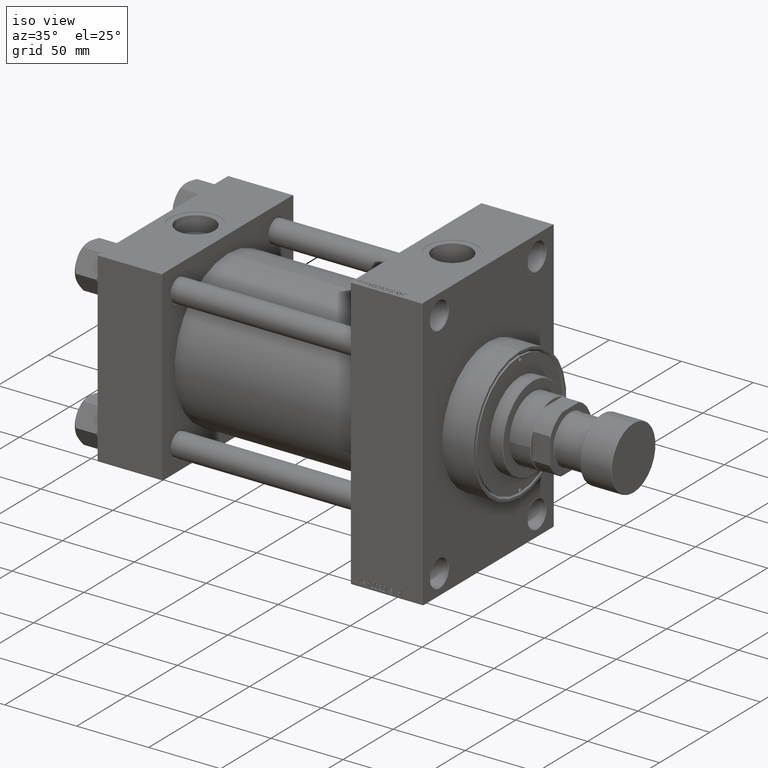
[diagram: clean part render]
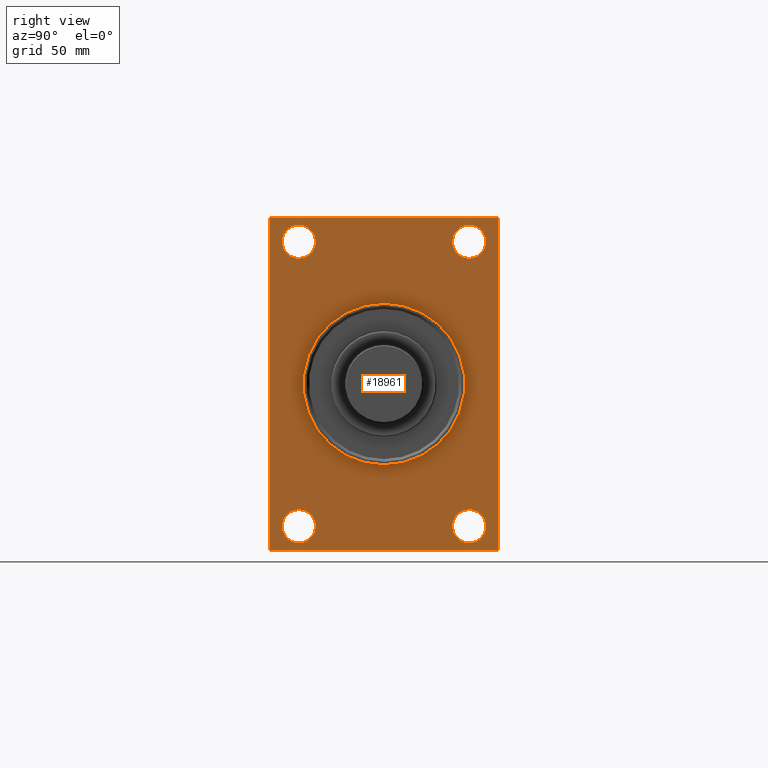
[diagram: tour spotlight — one face highlighted and labeled with its STEP entity id]
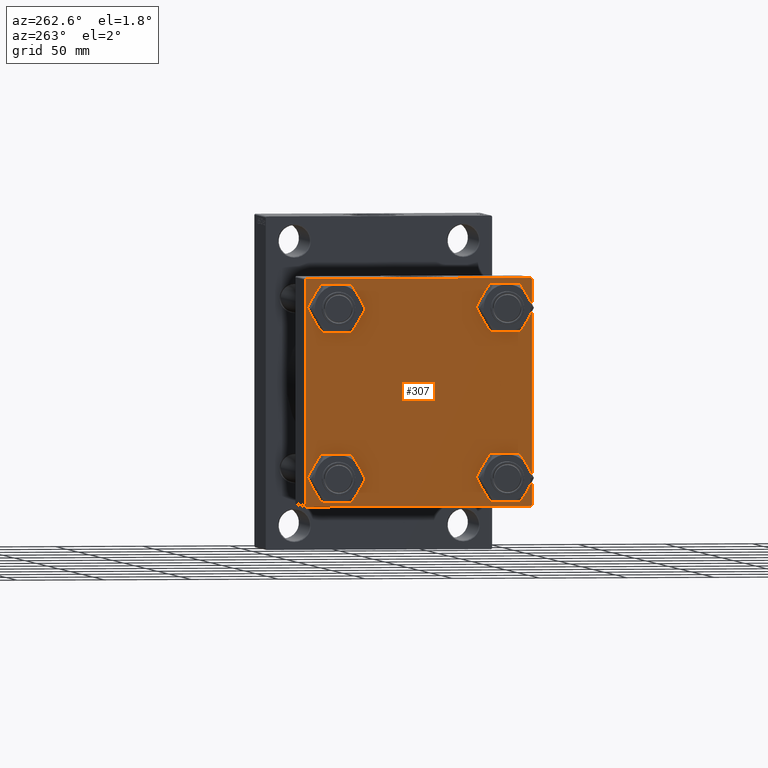
[diagram: tour spotlight — one face highlighted and labeled with its STEP entity id]
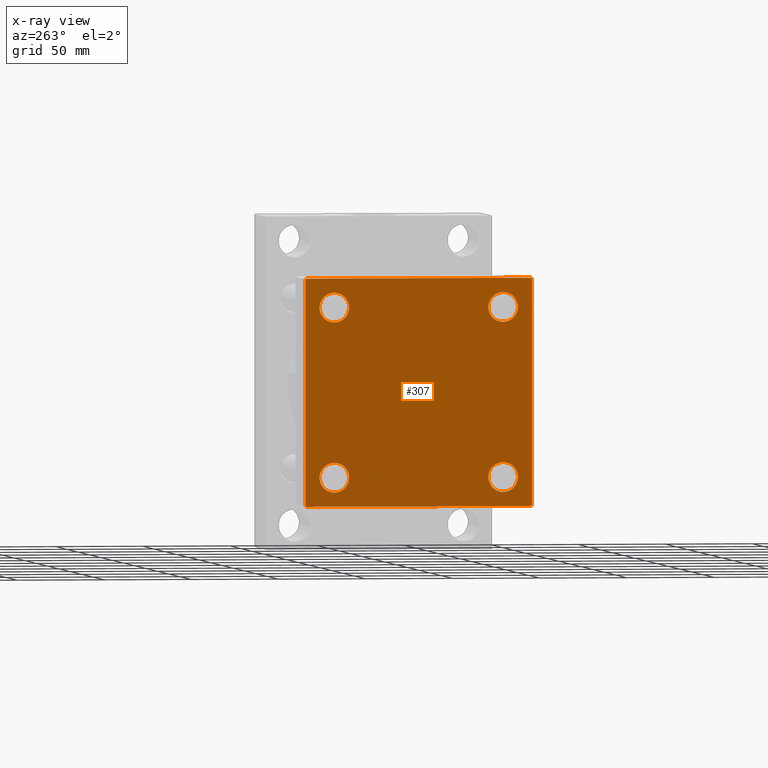
[diagram: x-ray of the same camera — body ghosted, this tour face saturated]
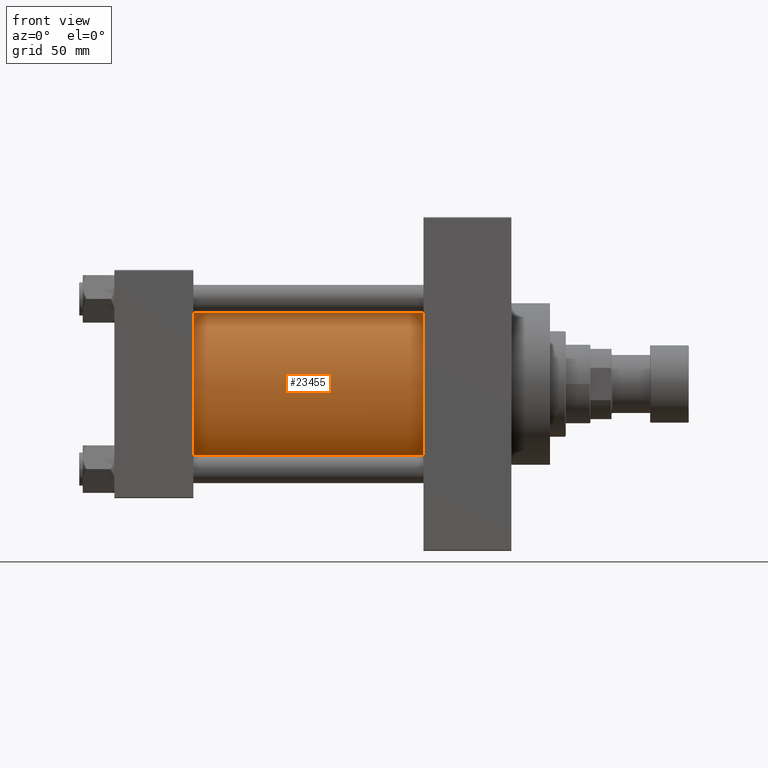
[diagram: tour spotlight — one face highlighted and labeled with its STEP entity id]
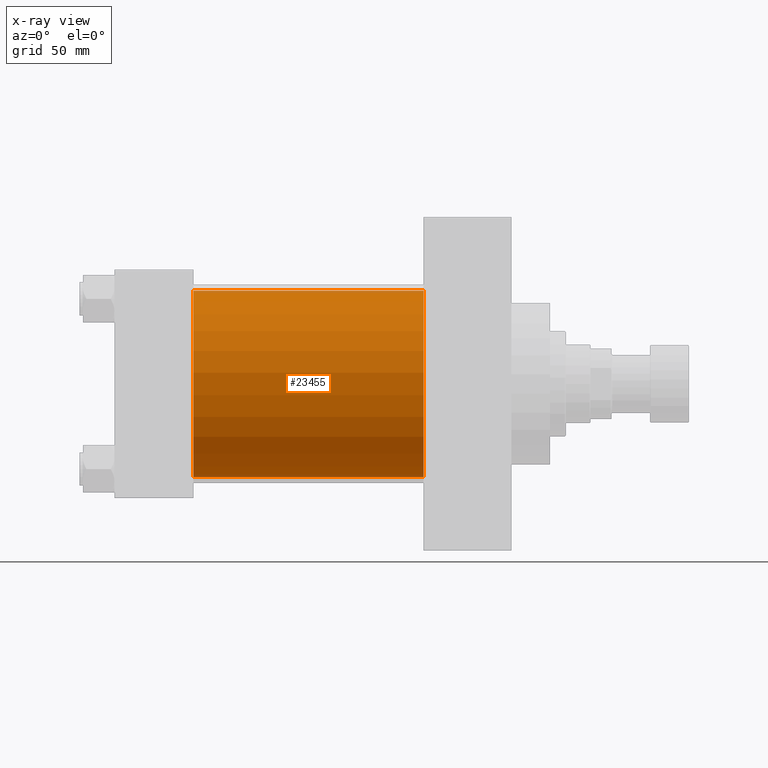
[diagram: x-ray of the same camera — body ghosted, this tour face saturated]
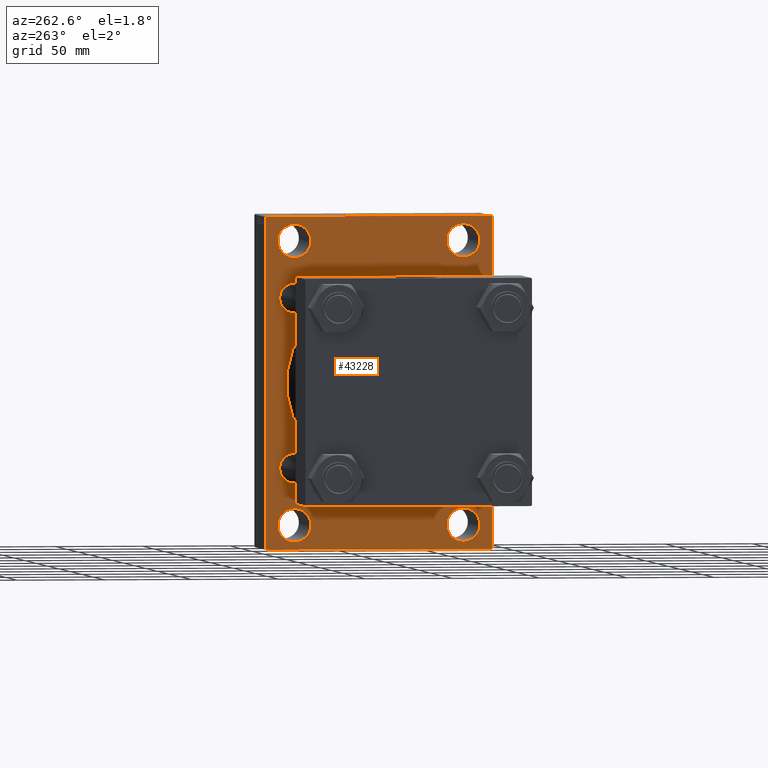
[diagram: tour spotlight — one face highlighted and labeled with its STEP entity id]
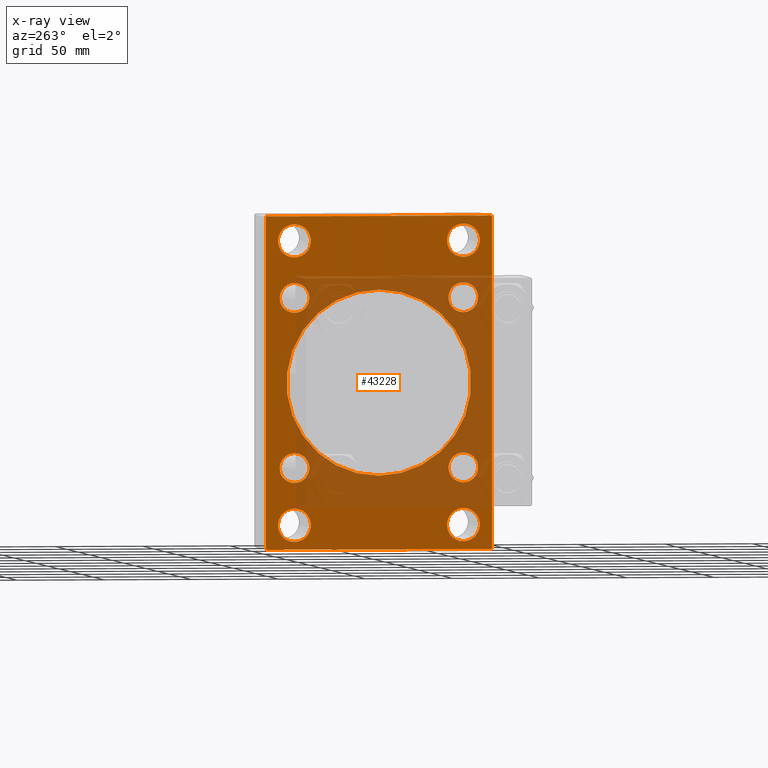
[diagram: x-ray of the same camera — body ghosted, this tour face saturated]
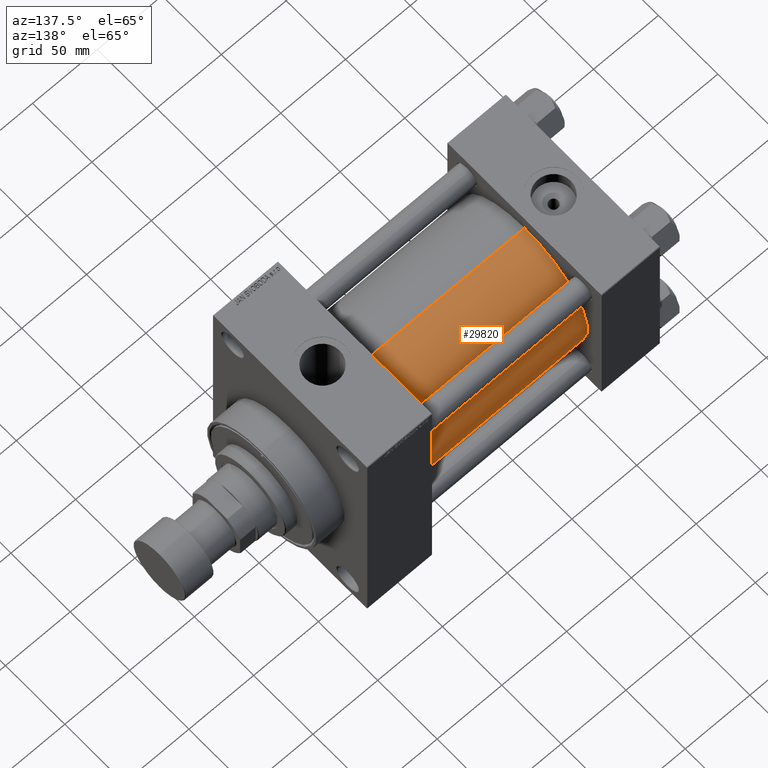
[diagram: tour spotlight — one face highlighted and labeled with its STEP entity id]
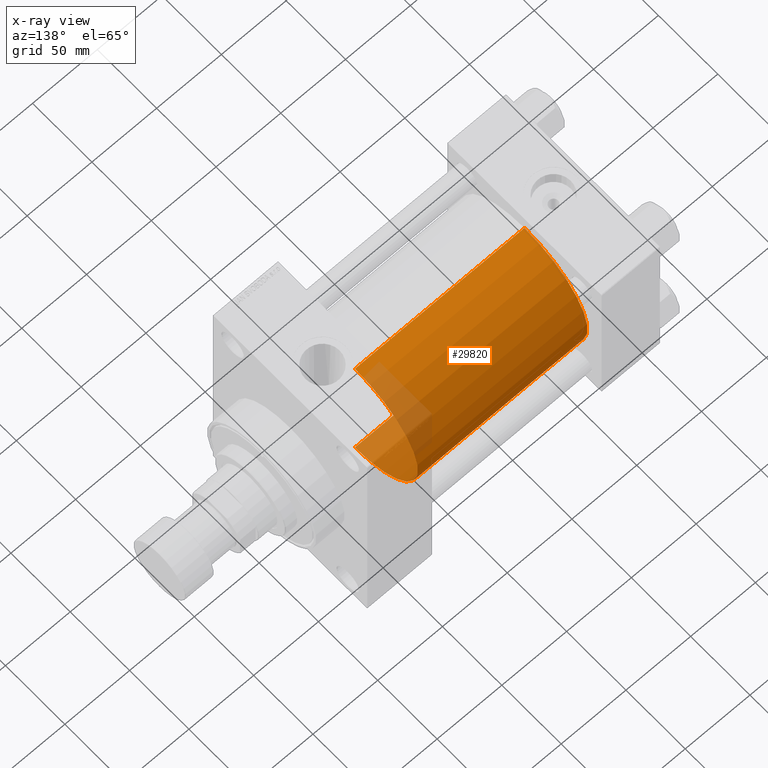
[diagram: x-ray of the same camera — body ghosted, this tour face saturated]
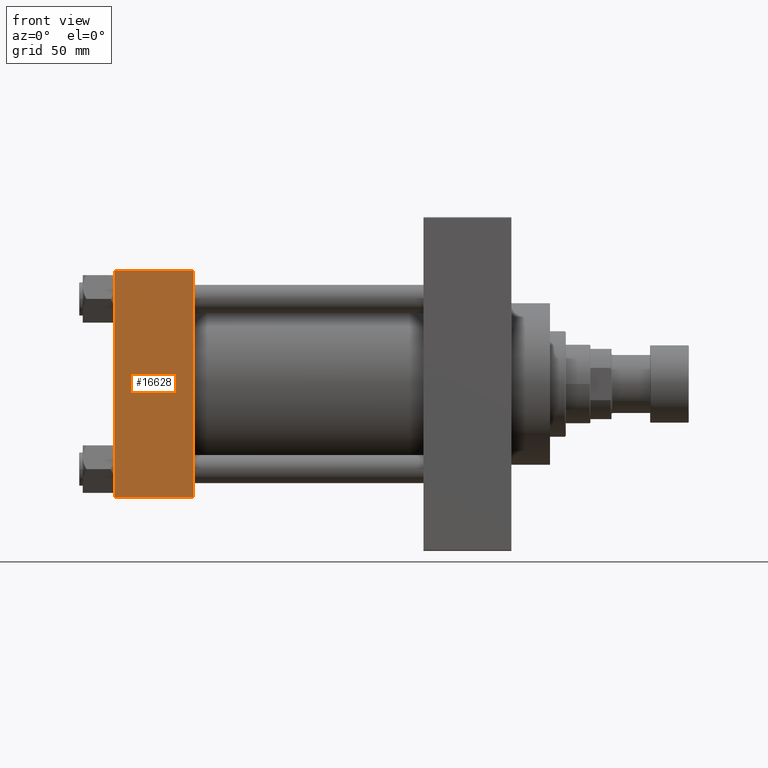
[diagram: tour spotlight — one face highlighted and labeled with its STEP entity id]
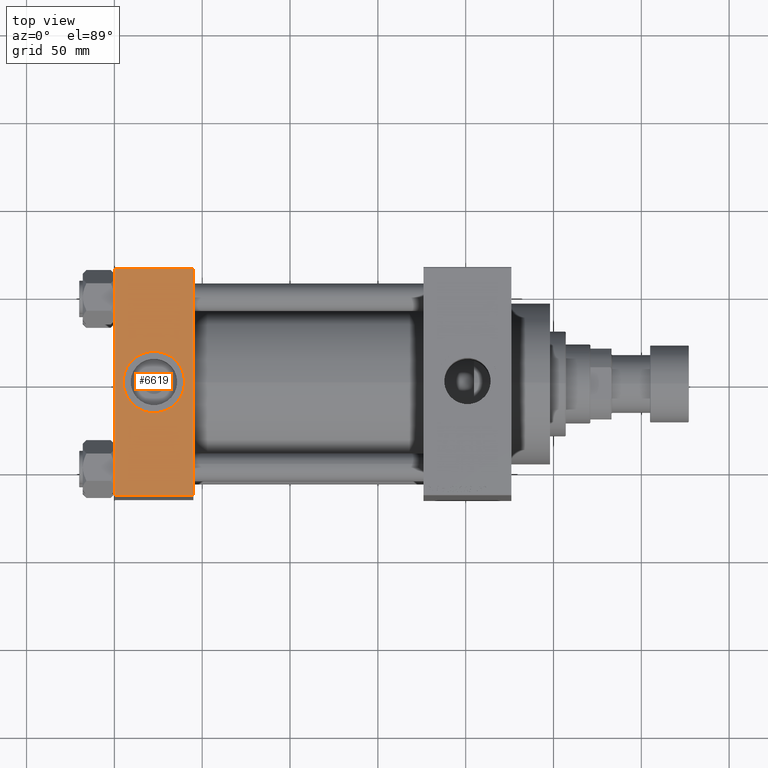
[diagram: tour spotlight — one face highlighted and labeled with its STEP entity id]
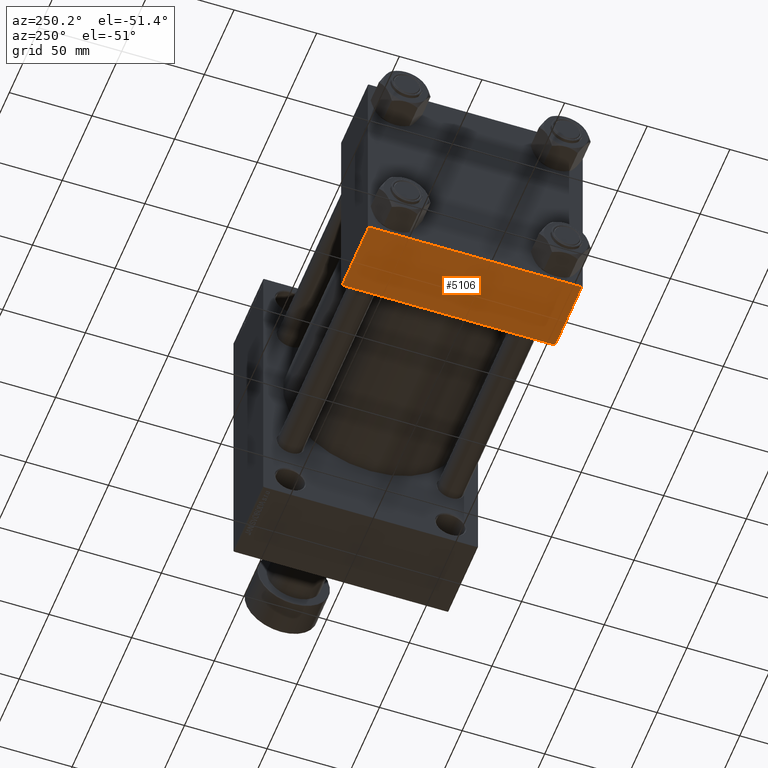
[diagram: tour spotlight — one face highlighted and labeled with its STEP entity id]
A machine part: a face-by-face anatomy tour. The part has 1172 B-rep faces; the first image is the clean iso view, then the 8 largest visible faces are spotlighted one at a time (largest first), each with its STEP entity span.

Face 1 — right view, entity #18961. In plain terms, the highlighted planar face has unit normal (-1, 0, 0).
Definition (entity closure, byte-faithful):
#198 = CARTESIAN_POINT ( 'NONE',  ( 225.9999999999999716, 64.99999999999997158, 94.99999999999997158 ) ) ;
#250 = VECTOR ( 'NONE', #28835, 1000.000000000000114 ) ;
#350 = ORIENTED_EDGE ( 'NONE', *, *, #41823, .F. ) ;
#1162 = FACE_BOUND ( 'NONE', #14487, .T. ) ;
#2071 = VERTEX_POINT ( 'NONE', #38015 ) ;
#2275 = CARTESIAN_POINT ( 'NONE',  ( 225.9999999999999716, 48.50000000000000711, -90.50000000000000000 ) ) ;
#2607 = AXIS2_PLACEMENT_3D ( 'NONE', #31258, #42991, #12690 ) ;
#3826 = CIRCLE ( 'NONE', #31112, 9.499999999999980460 ) ;
#5071 = CARTESIAN_POINT ( 'NONE',  ( 225.9999999999999716, -65.00000000000001421, 94.50000000000000000 ) ) ;
#5924 = EDGE_LOOP ( 'NONE', ( #31554, #42563, #11794, #40973, #7680, #22544, #26365, #29965 ) ) ;
#6015 = CIRCLE ( 'NONE', #12242, 46.00000000000000000 ) ;
#6155 = AXIS2_PLACEMENT_3D ( 'NONE', #14689, #22007, #39455 ) ;
#6340 = VECTOR ( 'NONE', #7951, 1000.000000000000000 ) ;
#6391 = CARTESIAN_POINT ( 'NONE',  ( 225.9999999999999716, 48.50000000000000711, 71.50000000000002842 ) ) ;
#6754 = VECTOR ( 'NONE', #10699, 1000.000000000000000 ) ;
#6842 = DIRECTION ( 'NONE',  ( -1.000000000000000000, 0.000000000000000000, -0.000000000000000000 ) ) ;
#7053 = CARTESIAN_POINT ( 'NONE',  ( 225.9999999999999716, -64.50000000000007105, -95.00000000000002842 ) ) ;
#7269 = LINE ( 'NONE', #198, #6754 ) ;
#7680 = ORIENTED_EDGE ( 'NONE', *, *, #41640, .F. ) ;
#7951 = DIRECTION ( 'NONE',  ( 0.000000000000000000, -1.000000000000000000, -1.067522139062650425E-16 ) ) ;
#7980 = CIRCLE ( 'NONE', #17362, 9.499999999999980460 ) ;
#8208 = CARTESIAN_POINT ( 'NONE',  ( 225.9999999999999716, 64.49999999999997158, 94.99999999999997158 ) ) ;
#8951 = DIRECTION ( 'NONE',  ( 1.000000000000000000, 0.000000000000000000, 0.000000000000000000 ) ) ;
#8974 = CARTESIAN_POINT ( 'NONE',  ( 225.9999999999999716, -48.49999999999999289, -71.50000000000004263 ) ) ;
#8975 = EDGE_CURVE ( 'NONE', #35042, #39612, #45482, .T. ) ;
#9129 = VERTEX_POINT ( 'NONE', #7053 ) ;
#9209 = DIRECTION ( 'NONE',  ( -0.000000000000000000, 0.000000000000000000, 1.000000000000000000 ) ) ;
#9617 = ORIENTED_EDGE ( 'NONE', *, *, #20809, .T. ) ;
#10001 = EDGE_CURVE ( 'NONE', #12928, #12438, #23025, .T. ) ;
#10699 = DIRECTION ( 'NONE',  ( 0.000000000000000000, -1.000000000000000000, 0.000000000000000000 ) ) ;
#11141 = LINE ( 'NONE', #44373, #42247 ) ;
#11375 = EDGE_LOOP ( 'NONE', ( #29659, #18472 ) ) ;
#11450 = CIRCLE ( 'NONE', #27039, 9.499999999999980460 ) ;
#11629 = LINE ( 'NONE', #33624, #22227 ) ;
#11794 = ORIENTED_EDGE ( 'NONE', *, *, #18447, .F. ) ;
#11914 = DIRECTION ( 'NONE',  ( -1.000000000000000000, 0.000000000000000000, -0.000000000000000000 ) ) ;
#12242 = AXIS2_PLACEMENT_3D ( 'NONE', #24328, #8951, #35097 ) ;
#12438 = VERTEX_POINT ( 'NONE', #42638 ) ;
#12633 = CARTESIAN_POINT ( 'NONE',  ( 225.9999999999999716, 0.000000000000000000, 0.000000000000000000 ) ) ;
#12690 = DIRECTION ( 'NONE',  ( 0.000000000000000000, 0.000000000000000000, 1.000000000000000000 ) ) ;
#12928 = VERTEX_POINT ( 'NONE', #29547 ) ;
#12961 = CARTESIAN_POINT ( 'NONE',  ( 225.9999999999999716, -48.50000000000000000, 90.49999999999998579 ) ) ;
#13320 = VECTOR ( 'NONE', #19475, 1000.000000000000114 ) ;
#13449 = LINE ( 'NONE', #29315, #250 ) ;
#14341 = VERTEX_POINT ( 'NONE', #14767 ) ;
#14487 = EDGE_LOOP ( 'NONE', ( #15364, #9617 ) ) ;
#14689 = CARTESIAN_POINT ( 'NONE',  ( 225.9999999999999716, 48.50000000000000711, 81.00000000000000000 ) ) ;
#14767 = CARTESIAN_POINT ( 'NONE',  ( 225.9999999999999716, 0.000000000000000000, 46.00000000000000000 ) ) ;
#15364 = ORIENTED_EDGE ( 'NONE', *, *, #40557, .T. ) ;
#16058 = FACE_BOUND ( 'NONE', #22607, .T. ) ;
#16221 = VERTEX_POINT ( 'NONE', #6391 ) ;
#16561 = DIRECTION ( 'NONE',  ( -1.000000000000000000, 0.000000000000000000, -0.000000000000000000 ) ) ;
#17362 = AXIS2_PLACEMENT_3D ( 'NONE', #35147, #16561, #42960 ) ;
#17558 = DIRECTION ( 'NONE',  ( 0.000000000000000000, 0.000000000000000000, 1.000000000000000000 ) ) ;
#17758 = EDGE_CURVE ( 'NONE', #2071, #39188, #31705, .T. ) ;
#17959 = DIRECTION ( 'NONE',  ( 0.000000000000000000, 0.000000000000000000, 1.000000000000000000 ) ) ;
#18447 = EDGE_CURVE ( 'NONE', #12928, #9129, #34098, .T. ) ;
#18472 = ORIENTED_EDGE ( 'NONE', *, *, #37590, .T. ) ;
#18961 = ADVANCED_FACE ( 'NONE', ( #27059, #31200, #1162, #30715, #16058, #30959 ), #23615, .F. ) ;
#19045 = EDGE_CURVE ( 'NONE', #37466, #9129, #11141, .T. ) ;
#19424 = CARTESIAN_POINT ( 'NONE',  ( 225.9999999999999716, -48.49999999999999289, -90.50000000000000000 ) ) ;
#19475 = DIRECTION ( 'NONE',  ( -0.000000000000000000, -0.7071067811865573427, -0.7071067811865376918 ) ) ;
#19627 = ORIENTED_EDGE ( 'NONE', *, *, #46679, .T. ) ;
#20294 = DIRECTION ( 'NONE',  ( 1.000000000000000000, 0.000000000000000000, 0.000000000000000000 ) ) ;
#20298 = DIRECTION ( 'NONE',  ( -1.000000000000000000, 0.000000000000000000, -0.000000000000000000 ) ) ;
#20809 = EDGE_CURVE ( 'NONE', #42574, #36192, #21978, .T. ) ;
#21312 = CARTESIAN_POINT ( 'NONE',  ( 225.9999999999999716, 48.50000000000000711, -71.50000000000004263 ) ) ;
#21745 = EDGE_CURVE ( 'NONE', #36456, #36308, #7980, .T. ) ;
#21978 = CIRCLE ( 'NONE', #25895, 9.499999999999980460 ) ;
#22007 = DIRECTION ( 'NONE',  ( -1.000000000000000000, 0.000000000000000000, -0.000000000000000000 ) ) ;
#22125 = DIRECTION ( 'NONE',  ( 0.000000000000000000, 0.7071067811865474617, -0.7071067811865474617 ) ) ;
#22227 = VECTOR ( 'NONE', #26523, 1000.000000000000000 ) ;
#22513 = CARTESIAN_POINT ( 'NONE',  ( 225.9999999999999716, -48.50000000000000000, 71.50000000000002842 ) ) ;
#22544 = ORIENTED_EDGE ( 'NONE', *, *, #23147, .T. ) ;
#22607 = EDGE_LOOP ( 'NONE', ( #350, #33507 ) ) ;
#23018 = ORIENTED_EDGE ( 'NONE', *, *, #40035, .T. ) ;
#23025 = LINE ( 'NONE', #34763, #26025 ) ;
#23147 = EDGE_CURVE ( 'NONE', #30136, #45979, #13449, .T. ) ;
#23615 = PLANE ( 'NONE',  #32112 ) ;
#24328 = CARTESIAN_POINT ( 'NONE',  ( 225.9999999999999716, 0.000000000000000000, 0.000000000000000000 ) ) ;
#25895 = AXIS2_PLACEMENT_3D ( 'NONE', #35926, #36168, #28596 ) ;
#26025 = VECTOR ( 'NONE', #41848, 1000.000000000000000 ) ;
#26365 = ORIENTED_EDGE ( 'NONE', *, *, #34464, .T. ) ;
#26523 = DIRECTION ( 'NONE',  ( 0.000000000000000000, 0.000000000000000000, -1.000000000000000000 ) ) ;
#26940 = ORIENTED_EDGE ( 'NONE', *, *, #36342, .T. ) ;
#26994 = CARTESIAN_POINT ( 'NONE',  ( 225.9999999999999716, 64.99999999999998579, -95.00000000000001421 ) ) ;
#27039 = AXIS2_PLACEMENT_3D ( 'NONE', #47409, #6842, #32971 ) ;
#27059 = FACE_BOUND ( 'NONE', #41242, .T. ) ;
#27074 = CIRCLE ( 'NONE', #29422, 9.499999999999980460 ) ;
#27213 = CIRCLE ( 'NONE', #6155, 9.499999999999980460 ) ;
#27881 = DIRECTION ( 'NONE',  ( 0.000000000000000000, 0.000000000000000000, -1.000000000000000000 ) ) ;
#27925 = EDGE_CURVE ( 'NONE', #39188, #37466, #11629, .T. ) ;
#28596 = DIRECTION ( 'NONE',  ( 0.000000000000000000, 0.000000000000000000, 1.000000000000000000 ) ) ;
#28734 = CARTESIAN_POINT ( 'NONE',  ( 225.9999999999999716, 48.50000000000000711, -81.00000000000001421 ) ) ;
#28835 = DIRECTION ( 'NONE',  ( 0.000000000000000000, -0.7071067811865474617, 0.7071067811865474617 ) ) ;
#29208 = DIRECTION ( 'NONE',  ( -1.000000000000000000, 0.000000000000000000, -0.000000000000000000 ) ) ;
#29315 = CARTESIAN_POINT ( 'NONE',  ( 225.9999999999999716, 64.49999999999997158, 94.99999999999997158 ) ) ;
#29380 = CARTESIAN_POINT ( 'NONE',  ( 225.9999999999999716, 48.50000000000000711, 81.00000000000000000 ) ) ;
#29422 = AXIS2_PLACEMENT_3D ( 'NONE', #29380, #30094, #48192 ) ;
#29547 = CARTESIAN_POINT ( 'NONE',  ( 225.9999999999999716, 64.49999999999998579, -95.00000000000001421 ) ) ;
#29659 = ORIENTED_EDGE ( 'NONE', *, *, #8975, .T. ) ;
#29965 = ORIENTED_EDGE ( 'NONE', *, *, #17758, .T. ) ;
#30094 = DIRECTION ( 'NONE',  ( -1.000000000000000000, 0.000000000000000000, -0.000000000000000000 ) ) ;
#30136 = VERTEX_POINT ( 'NONE', #44814 ) ;
#30715 = FACE_BOUND ( 'NONE', #45350, .T. ) ;
#30779 = CARTESIAN_POINT ( 'NONE',  ( 225.9999999999999716, -65.00000000000001421, 94.50000000000000000 ) ) ;
#30959 = FACE_OUTER_BOUND ( 'NONE', #5924, .T. ) ;
#31112 = AXIS2_PLACEMENT_3D ( 'NONE', #28734, #29208, #17959 ) ;
#31200 = FACE_BOUND ( 'NONE', #11375, .T. ) ;
#31258 = CARTESIAN_POINT ( 'NONE',  ( 225.9999999999999716, -48.49999999999999289, -81.00000000000001421 ) ) ;
#31554 = ORIENTED_EDGE ( 'NONE', *, *, #27925, .T. ) ;
#31608 = DIRECTION ( 'NONE',  ( 0.000000000000000000, 7.304098846218135653E-17, -1.000000000000000000 ) ) ;
#31705 = LINE ( 'NONE', #5071, #13320 ) ;
#32112 = AXIS2_PLACEMENT_3D ( 'NONE', #12633, #11914, #9209 ) ;
#32597 = CIRCLE ( 'NONE', #45088, 9.499999999999980460 ) ;
#32726 = AXIS2_PLACEMENT_3D ( 'NONE', #34490, #20294, #27881 ) ;
#32971 = DIRECTION ( 'NONE',  ( 0.000000000000000000, 0.000000000000000000, 1.000000000000000000 ) ) ;
#33164 = CARTESIAN_POINT ( 'NONE',  ( 225.9999999999999716, 48.50000000000000711, 90.49999999999998579 ) ) ;
#33507 = ORIENTED_EDGE ( 'NONE', *, *, #48041, .F. ) ;
#33624 = CARTESIAN_POINT ( 'NONE',  ( 225.9999999999999716, -65.00000000000001421, 94.99999999999997158 ) ) ;
#34098 = LINE ( 'NONE', #26994, #6340 ) ;
#34464 = EDGE_CURVE ( 'NONE', #45979, #2071, #7269, .T. ) ;
#34490 = CARTESIAN_POINT ( 'NONE',  ( 225.9999999999999716, 0.000000000000000000, 0.000000000000000000 ) ) ;
#34763 = CARTESIAN_POINT ( 'NONE',  ( 225.9999999999999716, 64.99999999999998579, -94.50000000000002842 ) ) ;
#35042 = VERTEX_POINT ( 'NONE', #19424 ) ;
#35097 = DIRECTION ( 'NONE',  ( 0.000000000000000000, 0.000000000000000000, -1.000000000000000000 ) ) ;
#35147 = CARTESIAN_POINT ( 'NONE',  ( 225.9999999999999716, -48.50000000000000000, 81.00000000000000000 ) ) ;
#35926 = CARTESIAN_POINT ( 'NONE',  ( 225.9999999999999716, 48.50000000000000711, -81.00000000000001421 ) ) ;
#36129 = CARTESIAN_POINT ( 'NONE',  ( 225.9999999999999716, -48.49999999999999289, -81.00000000000001421 ) ) ;
#36168 = DIRECTION ( 'NONE',  ( -1.000000000000000000, 0.000000000000000000, -0.000000000000000000 ) ) ;
#36192 = VERTEX_POINT ( 'NONE', #2275 ) ;
#36308 = VERTEX_POINT ( 'NONE', #22513 ) ;
#36342 = EDGE_CURVE ( 'NONE', #16221, #46905, #27074, .T. ) ;
#36456 = VERTEX_POINT ( 'NONE', #12961 ) ;
#37466 = VERTEX_POINT ( 'NONE', #45630 ) ;
#37590 = EDGE_CURVE ( 'NONE', #39612, #35042, #32597, .T. ) ;
#37693 = VERTEX_POINT ( 'NONE', #44415 ) ;
#38015 = CARTESIAN_POINT ( 'NONE',  ( 225.9999999999999716, -64.50000000000002842, 94.99999999999997158 ) ) ;
#39188 = VERTEX_POINT ( 'NONE', #30779 ) ;
#39427 = LINE ( 'NONE', #46515, #42104 ) ;
#39455 = DIRECTION ( 'NONE',  ( 0.000000000000000000, 0.000000000000000000, 1.000000000000000000 ) ) ;
#39612 = VERTEX_POINT ( 'NONE', #8974 ) ;
#40035 = EDGE_CURVE ( 'NONE', #46905, #16221, #27213, .T. ) ;
#40557 = EDGE_CURVE ( 'NONE', #36192, #42574, #3826, .T. ) ;
#40973 = ORIENTED_EDGE ( 'NONE', *, *, #10001, .T. ) ;
#41168 = ORIENTED_EDGE ( 'NONE', *, *, #21745, .T. ) ;
#41242 = EDGE_LOOP ( 'NONE', ( #19627, #41168 ) ) ;
#41640 = EDGE_CURVE ( 'NONE', #30136, #12438, #39427, .T. ) ;
#41823 = EDGE_CURVE ( 'NONE', #14341, #37693, #47561, .T. ) ;
#41848 = DIRECTION ( 'NONE',  ( -0.000000000000000000, 0.7071067811865573427, 0.7071067811865378028 ) ) ;
#42104 = VECTOR ( 'NONE', #31608, 1000.000000000000000 ) ;
#42247 = VECTOR ( 'NONE', #22125, 1000.000000000000114 ) ;
#42563 = ORIENTED_EDGE ( 'NONE', *, *, #19045, .T. ) ;
#42574 = VERTEX_POINT ( 'NONE', #21312 ) ;
#42638 = CARTESIAN_POINT ( 'NONE',  ( 225.9999999999999716, 64.99999999999998579, -94.50000000000002842 ) ) ;
#42960 = DIRECTION ( 'NONE',  ( 0.000000000000000000, 0.000000000000000000, 1.000000000000000000 ) ) ;
#42991 = DIRECTION ( 'NONE',  ( -1.000000000000000000, 0.000000000000000000, -0.000000000000000000 ) ) ;
#44373 = CARTESIAN_POINT ( 'NONE',  ( 225.9999999999999716, -64.50000000000007105, -95.00000000000002842 ) ) ;
#44415 = CARTESIAN_POINT ( 'NONE',  ( 225.9999999999999716, 5.633375276077824704E-15, -46.00000000000000000 ) ) ;
#44814 = CARTESIAN_POINT ( 'NONE',  ( 225.9999999999999716, 64.99999999999997158, 94.49999999999997158 ) ) ;
#45088 = AXIS2_PLACEMENT_3D ( 'NONE', #36129, #20298, #17558 ) ;
#45350 = EDGE_LOOP ( 'NONE', ( #26940, #23018 ) ) ;
#45482 = CIRCLE ( 'NONE', #2607, 9.499999999999980460 ) ;
#45630 = CARTESIAN_POINT ( 'NONE',  ( 225.9999999999999716, -65.00000000000001421, -94.50000000000008527 ) ) ;
#45979 = VERTEX_POINT ( 'NONE', #8208 ) ;
#46515 = CARTESIAN_POINT ( 'NONE',  ( 225.9999999999999716, 64.99999999999997158, 94.99999999999997158 ) ) ;
#46679 = EDGE_CURVE ( 'NONE', #36308, #36456, #11450, .T. ) ;
#46905 = VERTEX_POINT ( 'NONE', #33164 ) ;
#47409 = CARTESIAN_POINT ( 'NONE',  ( 225.9999999999999716, -48.50000000000000000, 81.00000000000000000 ) ) ;
#47561 = CIRCLE ( 'NONE', #32726, 46.00000000000000000 ) ;
#48041 = EDGE_CURVE ( 'NONE', #37693, #14341, #6015, .T. ) ;
#48192 = DIRECTION ( 'NONE',  ( 0.000000000000000000, 0.000000000000000000, 1.000000000000000000 ) ) ;

Face 2 — auxiliary view, entity #307. An x-ray twin of the same camera follows (body ghosted, this face saturated) — the face is partly hidden behind the body. In plain terms, the highlighted planar face has unit normal (-1, 0, 0).
Definition (entity closure, byte-faithful):
#307 = ADVANCED_FACE ( 'NONE', ( #29067, #43964, #9771, #13439, #40055 ), #28585, .T. ) ;
#381 = EDGE_LOOP ( 'NONE', ( #31391, #7541 ) ) ;
#652 = DIRECTION ( 'NONE',  ( 0.000000000000000000, 0.000000000000000000, 1.000000000000000000 ) ) ;
#803 = CARTESIAN_POINT ( 'NONE',  ( 0.000000000000000000, 48.45000000000000995, -56.95000000000002416 ) ) ;
#887 = VECTOR ( 'NONE', #4857, 1000.000000000000114 ) ;
#1122 = DIRECTION ( 'NONE',  ( 0.000000000000000000, -1.000000000000000000, -1.067522139062650425E-16 ) ) ;
#1658 = AXIS2_PLACEMENT_3D ( 'NONE', #15852, #45898, #15616 ) ;
#2572 = AXIS2_PLACEMENT_3D ( 'NONE', #31317, #46951, #5419 ) ;
#2712 = CIRCLE ( 'NONE', #45586, 8.500000000000007105 ) ;
#3097 = CARTESIAN_POINT ( 'NONE',  ( 0.000000000000000000, -48.44999999999999574, 48.45000000000003126 ) ) ;
#3178 = EDGE_LOOP ( 'NONE', ( #13686, #5721 ) ) ;
#3672 = DIRECTION ( 'NONE',  ( -0.000000000000000000, 0.7071067811865672237, 0.7071067811865279218 ) ) ;
#4392 = EDGE_CURVE ( 'NONE', #18703, #13463, #30759, .T. ) ;
#4442 = EDGE_CURVE ( 'NONE', #31511, #32598, #34429, .T. ) ;
#4836 = EDGE_CURVE ( 'NONE', #16947, #8034, #15693, .T. ) ;
#4857 = DIRECTION ( 'NONE',  ( 0.000000000000000000, 0.7071067811865474617, -0.7071067811865474617 ) ) ;
#5128 = EDGE_CURVE ( 'NONE', #6933, #39339, #47731, .T. ) ;
#5419 = DIRECTION ( 'NONE',  ( 0.000000000000000000, 0.000000000000000000, 1.000000000000000000 ) ) ;
#5567 = EDGE_CURVE ( 'NONE', #32598, #31511, #22738, .T. ) ;
#5721 = ORIENTED_EDGE ( 'NONE', *, *, #7705, .T. ) ;
#5874 = EDGE_CURVE ( 'NONE', #29058, #43983, #14175, .T. ) ;
#5875 = ORIENTED_EDGE ( 'NONE', *, *, #25026, .T. ) ;
#6038 = ORIENTED_EDGE ( 'NONE', *, *, #4836, .T. ) ;
#6933 = VERTEX_POINT ( 'NONE', #37797 ) ;
#7125 = ORIENTED_EDGE ( 'NONE', *, *, #47341, .T. ) ;
#7183 = DIRECTION ( 'NONE',  ( 0.000000000000000000, 0.000000000000000000, -1.000000000000000000 ) ) ;
#7541 = ORIENTED_EDGE ( 'NONE', *, *, #5567, .T. ) ;
#7705 = EDGE_CURVE ( 'NONE', #43983, #29058, #45445, .T. ) ;
#8034 = VERTEX_POINT ( 'NONE', #44851 ) ;
#8675 = CARTESIAN_POINT ( 'NONE',  ( 0.000000000000000000, -48.44999999999999574, 56.95000000000003837 ) ) ;
#9143 = ORIENTED_EDGE ( 'NONE', *, *, #13228, .T. ) ;
#9194 = ORIENTED_EDGE ( 'NONE', *, *, #4392, .T. ) ;
#9771 = FACE_BOUND ( 'NONE', #43953, .T. ) ;
#10819 = LINE ( 'NONE', #11301, #43203 ) ;
#10920 = DIRECTION ( 'NONE',  ( 1.000000000000000000, -0.000000000000000000, 0.000000000000000000 ) ) ;
#11077 = VERTEX_POINT ( 'NONE', #26889 ) ;
#11090 = CARTESIAN_POINT ( 'NONE',  ( 0.000000000000000000, -65.00000000000000000, 65.00000000000000000 ) ) ;
#11158 = CARTESIAN_POINT ( 'NONE',  ( 0.000000000000000000, 48.45000000000000995, 48.45000000000001705 ) ) ;
#11225 = CARTESIAN_POINT ( 'NONE',  ( -0.000000000000000000, -64.74999999999819522, 64.75000000000179057 ) ) ;
#11301 = CARTESIAN_POINT ( 'NONE',  ( 0.000000000000000000, 64.74999999999997158, -64.74999999999997158 ) ) ;
#11734 = EDGE_CURVE ( 'NONE', #8034, #16947, #2712, .T. ) ;
#12558 = AXIS2_PLACEMENT_3D ( 'NONE', #24089, #38759, #24576 ) ;
#13228 = EDGE_CURVE ( 'NONE', #36902, #35562, #47204, .T. ) ;
#13386 = EDGE_CURVE ( 'NONE', #22770, #6933, #35322, .T. ) ;
#13439 = FACE_BOUND ( 'NONE', #20239, .T. ) ;
#13463 = VERTEX_POINT ( 'NONE', #28225 ) ;
#13479 = DIRECTION ( 'NONE',  ( 0.000000000000000000, 0.000000000000000000, 1.000000000000000000 ) ) ;
#13513 = CARTESIAN_POINT ( 'NONE',  ( 0.000000000000000000, -48.44999999999999574, -39.95000000000001705 ) ) ;
#13686 = ORIENTED_EDGE ( 'NONE', *, *, #5874, .T. ) ;
#13947 = ORIENTED_EDGE ( 'NONE', *, *, #25501, .T. ) ;
#14034 = ORIENTED_EDGE ( 'NONE', *, *, #19830, .F. ) ;
#14088 = DIRECTION ( 'NONE',  ( 1.000000000000000000, -0.000000000000000000, 0.000000000000000000 ) ) ;
#14175 = CIRCLE ( 'NONE', #20398, 8.500000000000007105 ) ;
#14552 = CARTESIAN_POINT ( 'NONE',  ( 0.000000000000000000, -65.00000000000000000, 64.50000000000000000 ) ) ;
#14962 = DIRECTION ( 'NONE',  ( -0.000000000000000000, -0.7071067811865474617, -0.7071067811865474617 ) ) ;
#15616 = DIRECTION ( 'NONE',  ( 0.000000000000000000, 0.000000000000000000, 1.000000000000000000 ) ) ;
#15693 = CIRCLE ( 'NONE', #12558, 8.500000000000007105 ) ;
#15852 = CARTESIAN_POINT ( 'NONE',  ( 0.000000000000000000, -48.44999999999999574, -48.45000000000003126 ) ) ;
#16586 = CARTESIAN_POINT ( 'NONE',  ( 0.000000000000000000, -65.00000000000000000, -64.49999999999991473 ) ) ;
#16632 = CARTESIAN_POINT ( 'NONE',  ( 0.000000000000000000, -48.44999999999999574, 39.95000000000001705 ) ) ;
#16947 = VERTEX_POINT ( 'NONE', #803 ) ;
#17683 = CARTESIAN_POINT ( 'NONE',  ( 0.000000000000000000, -64.75000000000176215, -64.74999999999816680 ) ) ;
#17884 = CARTESIAN_POINT ( 'NONE',  ( 0.000000000000000000, 48.45000000000000995, 56.95000000000002416 ) ) ;
#18053 = CARTESIAN_POINT ( 'NONE',  ( 0.000000000000000000, 0.000000000000000000, 0.000000000000000000 ) ) ;
#18628 = VERTEX_POINT ( 'NONE', #33973 ) ;
#18703 = VERTEX_POINT ( 'NONE', #43471 ) ;
#18723 = DIRECTION ( 'NONE',  ( 1.000000000000000000, -0.000000000000000000, 0.000000000000000000 ) ) ;
#19624 = AXIS2_PLACEMENT_3D ( 'NONE', #36438, #25180, #13479 ) ;
#19830 = EDGE_CURVE ( 'NONE', #18703, #11077, #39869, .T. ) ;
#20239 = EDGE_LOOP ( 'NONE', ( #13947, #9143 ) ) ;
#20398 = AXIS2_PLACEMENT_3D ( 'NONE', #3097, #14088, #39744 ) ;
#20780 = VECTOR ( 'NONE', #3672, 1000.000000000000000 ) ;
#22141 = AXIS2_PLACEMENT_3D ( 'NONE', #11158, #18723, #652 ) ;
#22159 = CIRCLE ( 'NONE', #36231, 8.500000000000007105 ) ;
#22738 = CIRCLE ( 'NONE', #19624, 8.500000000000007105 ) ;
#22770 = VERTEX_POINT ( 'NONE', #46816 ) ;
#23291 = DIRECTION ( 'NONE',  ( 0.000000000000000000, 0.000000000000000000, 1.000000000000000000 ) ) ;
#24089 = CARTESIAN_POINT ( 'NONE',  ( 0.000000000000000000, 48.45000000000000995, -48.45000000000001705 ) ) ;
#24576 = DIRECTION ( 'NONE',  ( 0.000000000000000000, 0.000000000000000000, 1.000000000000000000 ) ) ;
#24585 = VECTOR ( 'NONE', #1122, 1000.000000000000000 ) ;
#24692 = VECTOR ( 'NONE', #30807, 1000.000000000000000 ) ;
#25026 = EDGE_CURVE ( 'NONE', #18628, #22770, #10819, .T. ) ;
#25095 = CARTESIAN_POINT ( 'NONE',  ( 0.000000000000000000, 48.45000000000000995, -48.45000000000001705 ) ) ;
#25180 = DIRECTION ( 'NONE',  ( 1.000000000000000000, -0.000000000000000000, 0.000000000000000000 ) ) ;
#25367 = VECTOR ( 'NONE', #7183, 1000.000000000000000 ) ;
#25501 = EDGE_CURVE ( 'NONE', #35562, #36902, #22159, .T. ) ;
#25811 = DIRECTION ( 'NONE',  ( 0.000000000000000000, 0.000000000000000000, 1.000000000000000000 ) ) ;
#26889 = CARTESIAN_POINT ( 'NONE',  ( 0.000000000000000000, -64.49999999999997158, 65.00000000000000000 ) ) ;
#27387 = LINE ( 'NONE', #45472, #24692 ) ;
#28204 = EDGE_CURVE ( 'NONE', #42497, #39339, #34052, .T. ) ;
#28225 = CARTESIAN_POINT ( 'NONE',  ( 0.000000000000000000, 65.00000000000000000, 64.49999999999998579 ) ) ;
#28585 = PLANE ( 'NONE',  #41417 ) ;
#29047 = EDGE_LOOP ( 'NONE', ( #7125, #5875, #48351, #41080, #42051, #36019, #14034, #9194 ) ) ;
#29058 = VERTEX_POINT ( 'NONE', #8675 ) ;
#29067 = FACE_BOUND ( 'NONE', #3178, .T. ) ;
#30759 = LINE ( 'NONE', #37618, #887 ) ;
#30807 = DIRECTION ( 'NONE',  ( 0.000000000000000000, 0.000000000000000000, -1.000000000000000000 ) ) ;
#31120 = CARTESIAN_POINT ( 'NONE',  ( 0.000000000000000000, 48.45000000000000995, 48.45000000000001705 ) ) ;
#31317 = CARTESIAN_POINT ( 'NONE',  ( 0.000000000000000000, -48.44999999999999574, 48.45000000000003126 ) ) ;
#31391 = ORIENTED_EDGE ( 'NONE', *, *, #4442, .T. ) ;
#31511 = VERTEX_POINT ( 'NONE', #13513 ) ;
#32598 = VERTEX_POINT ( 'NONE', #47295 ) ;
#33973 = CARTESIAN_POINT ( 'NONE',  ( 0.000000000000000000, 65.00000000000000000, -64.49999999999995737 ) ) ;
#34052 = LINE ( 'NONE', #11090, #25367 ) ;
#34429 = CIRCLE ( 'NONE', #1658, 8.500000000000007105 ) ;
#35322 = LINE ( 'NONE', #38735, #24585 ) ;
#35562 = VERTEX_POINT ( 'NONE', #17884 ) ;
#36019 = ORIENTED_EDGE ( 'NONE', *, *, #46716, .T. ) ;
#36157 = DIRECTION ( 'NONE',  ( -1.000000000000000000, 0.000000000000000000, -0.000000000000000000 ) ) ;
#36231 = AXIS2_PLACEMENT_3D ( 'NONE', #31120, #46516, #23291 ) ;
#36438 = CARTESIAN_POINT ( 'NONE',  ( 0.000000000000000000, -48.44999999999999574, -48.45000000000003126 ) ) ;
#36902 = VERTEX_POINT ( 'NONE', #40974 ) ;
#37618 = CARTESIAN_POINT ( 'NONE',  ( 0.000000000000000000, 64.74999999999998579, 64.74999999999998579 ) ) ;
#37797 = CARTESIAN_POINT ( 'NONE',  ( 0.000000000000000000, -64.49999999999994316, -65.00000000000000000 ) ) ;
#38735 = CARTESIAN_POINT ( 'NONE',  ( 0.000000000000000000, 65.00000000000000000, -64.99999999999998579 ) ) ;
#38759 = DIRECTION ( 'NONE',  ( 1.000000000000000000, -0.000000000000000000, 0.000000000000000000 ) ) ;
#39339 = VERTEX_POINT ( 'NONE', #16586 ) ;
#39744 = DIRECTION ( 'NONE',  ( 0.000000000000000000, 0.000000000000000000, 1.000000000000000000 ) ) ;
#39869 = LINE ( 'NONE', #40108, #39892 ) ;
#39892 = VECTOR ( 'NONE', #44742, 1000.000000000000000 ) ;
#40055 = FACE_OUTER_BOUND ( 'NONE', #29047, .T. ) ;
#40068 = ORIENTED_EDGE ( 'NONE', *, *, #11734, .T. ) ;
#40108 = CARTESIAN_POINT ( 'NONE',  ( 0.000000000000000000, 65.00000000000000000, 65.00000000000001421 ) ) ;
#40974 = CARTESIAN_POINT ( 'NONE',  ( 0.000000000000000000, 48.45000000000000995, 39.95000000000000284 ) ) ;
#41080 = ORIENTED_EDGE ( 'NONE', *, *, #5128, .T. ) ;
#41417 = AXIS2_PLACEMENT_3D ( 'NONE', #18053, #36157, #47868 ) ;
#42051 = ORIENTED_EDGE ( 'NONE', *, *, #28204, .F. ) ;
#42497 = VERTEX_POINT ( 'NONE', #14552 ) ;
#43203 = VECTOR ( 'NONE', #14962, 1000.000000000000114 ) ;
#43471 = CARTESIAN_POINT ( 'NONE',  ( 0.000000000000000000, 64.49999999999997158, 65.00000000000001421 ) ) ;
#43590 = DIRECTION ( 'NONE',  ( 0.000000000000000000, -0.7071067811865279218, 0.7071067811865671127 ) ) ;
#43953 = EDGE_LOOP ( 'NONE', ( #40068, #6038 ) ) ;
#43964 = FACE_BOUND ( 'NONE', #381, .T. ) ;
#43983 = VERTEX_POINT ( 'NONE', #16632 ) ;
#44216 = LINE ( 'NONE', #11225, #20780 ) ;
#44742 = DIRECTION ( 'NONE',  ( 0.000000000000000000, -1.000000000000000000, -1.067522139062650425E-16 ) ) ;
#44851 = CARTESIAN_POINT ( 'NONE',  ( 0.000000000000000000, 48.45000000000000995, -39.95000000000000284 ) ) ;
#45445 = CIRCLE ( 'NONE', #2572, 8.500000000000007105 ) ;
#45472 = CARTESIAN_POINT ( 'NONE',  ( 0.000000000000000000, 65.00000000000000000, 65.00000000000001421 ) ) ;
#45586 = AXIS2_PLACEMENT_3D ( 'NONE', #25095, #10920, #25811 ) ;
#45898 = DIRECTION ( 'NONE',  ( 1.000000000000000000, -0.000000000000000000, 0.000000000000000000 ) ) ;
#46516 = DIRECTION ( 'NONE',  ( 1.000000000000000000, -0.000000000000000000, 0.000000000000000000 ) ) ;
#46716 = EDGE_CURVE ( 'NONE', #42497, #11077, #44216, .T. ) ;
#46816 = CARTESIAN_POINT ( 'NONE',  ( 0.000000000000000000, 64.49999999999997158, -64.99999999999998579 ) ) ;
#46951 = DIRECTION ( 'NONE',  ( 1.000000000000000000, -0.000000000000000000, 0.000000000000000000 ) ) ;
#47204 = CIRCLE ( 'NONE', #22141, 8.500000000000007105 ) ;
#47295 = CARTESIAN_POINT ( 'NONE',  ( 0.000000000000000000, -48.44999999999999574, -56.95000000000003837 ) ) ;
#47341 = EDGE_CURVE ( 'NONE', #13463, #18628, #27387, .T. ) ;
#47730 = VECTOR ( 'NONE', #43590, 1000.000000000000000 ) ;
#47731 = LINE ( 'NONE', #17683, #47730 ) ;
#47868 = DIRECTION ( 'NONE',  ( -0.000000000000000000, 0.000000000000000000, 1.000000000000000000 ) ) ;
#48351 = ORIENTED_EDGE ( 'NONE', *, *, #13386, .T. ) ;

Face 3 — front view, entity #23455. An x-ray twin of the same camera follows (body ghosted, this face saturated) — the face is partly hidden behind the body. In plain terms, the highlighted cylindrical surface (partial cylindrical patch) has radius 53 mm, axis along (-1, -0, -0).
Definition (entity closure, byte-faithful):
#96 = VERTEX_POINT ( 'NONE', #47463 ) ;
#2162 = CYLINDRICAL_SURFACE ( 'NONE', #5705, 53.00000000000000711 ) ;
#3070 = DIRECTION ( 'NONE',  ( 1.000000000000000000, 0.000000000000000000, 0.000000000000000000 ) ) ;
#3383 = AXIS2_PLACEMENT_3D ( 'NONE', #18671, #3070, #26006 ) ;
#3740 = CARTESIAN_POINT ( 'NONE',  ( 44.99999999999998579, 3.888542821515762466E-15, -53.00000000000000711 ) ) ;
#4173 = EDGE_CURVE ( 'NONE', #23328, #37100, #13222, .T. ) ;
#4759 = AXIS2_PLACEMENT_3D ( 'NONE', #13658, #28561, #43463 ) ;
#5705 = AXIS2_PLACEMENT_3D ( 'NONE', #17052, #36817, #18959 ) ;
#6119 = EDGE_LOOP ( 'NONE', ( #6276, #46943, #13815, #14735 ) ) ;
#6276 = ORIENTED_EDGE ( 'NONE', *, *, #4173, .F. ) ;
#9460 = DIRECTION ( 'NONE',  ( -1.000000000000000000, -0.000000000000000000, -0.000000000000000000 ) ) ;
#9471 = FACE_OUTER_BOUND ( 'NONE', #6119, .T. ) ;
#13222 = LINE ( 'NONE', #47187, #23489 ) ;
#13658 = CARTESIAN_POINT ( 'NONE',  ( 44.99999999999998579, -2.602085213965210642E-15, 0.000000000000000000 ) ) ;
#13815 = ORIENTED_EDGE ( 'NONE', *, *, #20019, .T. ) ;
#14735 = ORIENTED_EDGE ( 'NONE', *, *, #18168, .T. ) ;
#17052 = CARTESIAN_POINT ( 'NONE',  ( 176.0000000000000000, -2.602085213965210642E-15, 0.000000000000000000 ) ) ;
#17321 = VECTOR ( 'NONE', #9460, 1000.000000000000000 ) ;
#18168 = EDGE_CURVE ( 'NONE', #96, #37100, #33654, .T. ) ;
#18671 = CARTESIAN_POINT ( 'NONE',  ( 176.0000000000000000, -2.602085213965210642E-15, 0.000000000000000000 ) ) ;
#18959 = DIRECTION ( 'NONE',  ( 0.000000000000000000, 0.000000000000000000, 1.000000000000000000 ) ) ;
#20019 = EDGE_CURVE ( 'NONE', #24968, #96, #28522, .T. ) ;
#23328 = VERTEX_POINT ( 'NONE', #27321 ) ;
#23455 = ADVANCED_FACE ( 'NONE', ( #9471 ), #2162, .T. ) ;
#23489 = VECTOR ( 'NONE', #28120, 1000.000000000000000 ) ;
#23774 = EDGE_CURVE ( 'NONE', #24968, #23328, #30669, .T. ) ;
#24505 = CARTESIAN_POINT ( 'NONE',  ( 176.0000000000000000, -2.602085213965210642E-15, 53.00000000000000711 ) ) ;
#24968 = VERTEX_POINT ( 'NONE', #24505 ) ;
#26006 = DIRECTION ( 'NONE',  ( 0.000000000000000000, 0.000000000000000000, -1.000000000000000000 ) ) ;
#27321 = CARTESIAN_POINT ( 'NONE',  ( 176.0000000000000000, 3.888542821515762466E-15, -53.00000000000000711 ) ) ;
#28120 = DIRECTION ( 'NONE',  ( -1.000000000000000000, -0.000000000000000000, -0.000000000000000000 ) ) ;
#28522 = LINE ( 'NONE', #42938, #17321 ) ;
#28561 = DIRECTION ( 'NONE',  ( 1.000000000000000000, -0.000000000000000000, 0.000000000000000000 ) ) ;
#30669 = CIRCLE ( 'NONE', #3383, 53.00000000000000711 ) ;
#33654 = CIRCLE ( 'NONE', #4759, 53.00000000000000711 ) ;
#36817 = DIRECTION ( 'NONE',  ( -1.000000000000000000, -0.000000000000000000, -0.000000000000000000 ) ) ;
#37100 = VERTEX_POINT ( 'NONE', #3740 ) ;
#42938 = CARTESIAN_POINT ( 'NONE',  ( 176.0000000000000000, -2.602085213965210642E-15, 53.00000000000000711 ) ) ;
#43463 = DIRECTION ( 'NONE',  ( 0.000000000000000000, 0.000000000000000000, 1.000000000000000000 ) ) ;
#46943 = ORIENTED_EDGE ( 'NONE', *, *, #23774, .F. ) ;
#47187 = CARTESIAN_POINT ( 'NONE',  ( 176.0000000000000000, 3.888542821515762466E-15, -53.00000000000000711 ) ) ;
#47463 = CARTESIAN_POINT ( 'NONE',  ( 44.99999999999998579, -2.602085213965210642E-15, 53.00000000000000711 ) ) ;

Face 4 — auxiliary view, entity #43228. An x-ray twin of the same camera follows (body ghosted, this face saturated) — the face is partly hidden behind the body. In plain terms, the highlighted planar face has unit normal (-1, 0, 0).
Definition (entity closure, byte-faithful):
#568 = DIRECTION ( 'NONE',  ( 1.000000000000000000, -0.000000000000000000, 0.000000000000000000 ) ) ;
#869 = DIRECTION ( 'NONE',  ( 0.000000000000000000, 0.7071067811865474617, -0.7071067811865474617 ) ) ;
#1190 = CARTESIAN_POINT ( 'NONE',  ( 176.0000000000000000, 48.50000000000000711, -71.50000000000001421 ) ) ;
#1889 = DIRECTION ( 'NONE',  ( 1.000000000000000000, -0.000000000000000000, 0.000000000000000000 ) ) ;
#1968 = DIRECTION ( 'NONE',  ( 1.000000000000000000, -0.000000000000000000, 0.000000000000000000 ) ) ;
#2129 = ORIENTED_EDGE ( 'NONE', *, *, #15949, .T. ) ;
#2803 = EDGE_LOOP ( 'NONE', ( #4758, #4765 ) ) ;
#2899 = CARTESIAN_POINT ( 'NONE',  ( 176.0000000000000000, -48.49999999999999289, -90.50000000000002842 ) ) ;
#2965 = AXIS2_PLACEMENT_3D ( 'NONE', #36421, #40076, #35937 ) ;
#3070 = DIRECTION ( 'NONE',  ( 1.000000000000000000, 0.000000000000000000, 0.000000000000000000 ) ) ;
#3101 = ORIENTED_EDGE ( 'NONE', *, *, #42823, .T. ) ;
#3376 = AXIS2_PLACEMENT_3D ( 'NONE', #22308, #28938, #11325 ) ;
#3383 = AXIS2_PLACEMENT_3D ( 'NONE', #18671, #3070, #26006 ) ;
#3567 = VECTOR ( 'NONE', #30311, 1000.000000000000000 ) ;
#3642 = VERTEX_POINT ( 'NONE', #2899 ) ;
#3912 = CARTESIAN_POINT ( 'NONE',  ( 176.0000000000000000, -64.50000000000002842, 94.99999999999997158 ) ) ;
#4562 = FACE_OUTER_BOUND ( 'NONE', #36274, .T. ) ;
#4627 = CARTESIAN_POINT ( 'NONE',  ( 176.0000000000000000, 64.99999999999997158, 94.99999999999997158 ) ) ;
#4656 = ORIENTED_EDGE ( 'NONE', *, *, #13413, .T. ) ;
#4758 = ORIENTED_EDGE ( 'NONE', *, *, #40544, .T. ) ;
#4765 = ORIENTED_EDGE ( 'NONE', *, *, #30747, .T. ) ;
#4821 = ORIENTED_EDGE ( 'NONE', *, *, #21083, .T. ) ;
#5523 = CARTESIAN_POINT ( 'NONE',  ( 176.0000000000000000, -48.50000000000000000, 90.50000000000001421 ) ) ;
#5717 = VERTEX_POINT ( 'NONE', #38522 ) ;
#5741 = AXIS2_PLACEMENT_3D ( 'NONE', #22346, #25530, #6967 ) ;
#6063 = VERTEX_POINT ( 'NONE', #34730 ) ;
#6967 = DIRECTION ( 'NONE',  ( 0.000000000000000000, 0.000000000000000000, -1.000000000000000000 ) ) ;
#7028 = FACE_BOUND ( 'NONE', #13944, .T. ) ;
#7064 = DIRECTION ( 'NONE',  ( 1.000000000000000000, -0.000000000000000000, 0.000000000000000000 ) ) ;
#7382 = AXIS2_PLACEMENT_3D ( 'NONE', #44612, #33617, #29947 ) ;
#7470 = CARTESIAN_POINT ( 'NONE',  ( 176.0000000000000000, -48.44999999999999574, 48.45000000000003126 ) ) ;
#7571 = EDGE_LOOP ( 'NONE', ( #38953, #4821 ) ) ;
#7996 = FACE_BOUND ( 'NONE', #38878, .T. ) ;
#8091 = AXIS2_PLACEMENT_3D ( 'NONE', #27270, #30929, #45832 ) ;
#8417 = ORIENTED_EDGE ( 'NONE', *, *, #42974, .T. ) ;
#8509 = EDGE_CURVE ( 'NONE', #25311, #45753, #16585, .T. ) ;
#8556 = CARTESIAN_POINT ( 'NONE',  ( 176.0000000000000000, 64.99999999999998579, -94.50000000000002842 ) ) ;
#9223 = ORIENTED_EDGE ( 'NONE', *, *, #38437, .F. ) ;
#9458 = ORIENTED_EDGE ( 'NONE', *, *, #26707, .T. ) ;
#10197 = VERTEX_POINT ( 'NONE', #12219 ) ;
#10348 = VERTEX_POINT ( 'NONE', #27362 ) ;
#10876 = DIRECTION ( 'NONE',  ( 0.000000000000000000, 0.000000000000000000, 1.000000000000000000 ) ) ;
#11132 = DIRECTION ( 'NONE',  ( -0.000000000000000000, -0.7071067811865573427, -0.7071067811865378028 ) ) ;
#11300 = EDGE_CURVE ( 'NONE', #14913, #24177, #29172, .T. ) ;
#11325 = DIRECTION ( 'NONE',  ( 0.000000000000000000, 0.000000000000000000, 1.000000000000000000 ) ) ;
#11664 = FACE_BOUND ( 'NONE', #41683, .T. ) ;
#11951 = DIRECTION ( 'NONE',  ( 1.000000000000000000, -0.000000000000000000, 0.000000000000000000 ) ) ;
#12192 = LINE ( 'NONE', #46631, #26406 ) ;
#12219 = CARTESIAN_POINT ( 'NONE',  ( 176.0000000000000000, 48.45000000000000995, -39.95000000000000284 ) ) ;
#12266 = CARTESIAN_POINT ( 'NONE',  ( 176.0000000000000000, 64.49999999999997158, 94.99999999999997158 ) ) ;
#12391 = CARTESIAN_POINT ( 'NONE',  ( 176.0000000000000000, -48.50000000000000000, 81.00000000000000000 ) ) ;
#12445 = AXIS2_PLACEMENT_3D ( 'NONE', #26613, #11951, #22934 ) ;
#12882 = AXIS2_PLACEMENT_3D ( 'NONE', #35428, #1968, #16365 ) ;
#13017 = CARTESIAN_POINT ( 'NONE',  ( 176.0000000000000000, -48.44999999999999574, 39.95000000000001705 ) ) ;
#13038 = EDGE_CURVE ( 'NONE', #22971, #28470, #22212, .T. ) ;
#13413 = EDGE_CURVE ( 'NONE', #24177, #14913, #43217, .T. ) ;
#13651 = VECTOR ( 'NONE', #11132, 1000.000000000000000 ) ;
#13820 = DIRECTION ( 'NONE',  ( 0.000000000000000000, 0.000000000000000000, 1.000000000000000000 ) ) ;
#13944 = EDGE_LOOP ( 'NONE', ( #9458, #2129 ) ) ;
#14086 = CARTESIAN_POINT ( 'NONE',  ( 176.0000000000000000, 48.50000000000000711, 71.50000000000000000 ) ) ;
#14164 = CARTESIAN_POINT ( 'NONE',  ( 176.0000000000000000, 48.50000000000000711, -81.00000000000001421 ) ) ;
#14236 = EDGE_CURVE ( 'NONE', #10348, #15444, #29169, .T. ) ;
#14332 = LINE ( 'NONE', #17755, #45148 ) ;
#14785 = DIRECTION ( 'NONE',  ( 1.000000000000000000, -0.000000000000000000, 0.000000000000000000 ) ) ;
#14913 = VERTEX_POINT ( 'NONE', #48142 ) ;
#14919 = LINE ( 'NONE', #4627, #24028 ) ;
#14994 = CARTESIAN_POINT ( 'NONE',  ( 176.0000000000000000, 48.45000000000000995, -56.95000000000002416 ) ) ;
#15193 = VERTEX_POINT ( 'NONE', #43704 ) ;
#15444 = VERTEX_POINT ( 'NONE', #14086 ) ;
#15563 = EDGE_CURVE ( 'NONE', #35612, #16734, #36791, .T. ) ;
#15949 = EDGE_CURVE ( 'NONE', #3642, #15193, #25760, .T. ) ;
#16365 = DIRECTION ( 'NONE',  ( 0.000000000000000000, 0.000000000000000000, 1.000000000000000000 ) ) ;
#16528 = CARTESIAN_POINT ( 'NONE',  ( 176.0000000000000000, -48.49999999999999289, -81.00000000000001421 ) ) ;
#16585 = CIRCLE ( 'NONE', #3376, 9.500000000000008882 ) ;
#16734 = VERTEX_POINT ( 'NONE', #21933 ) ;
#17006 = CIRCLE ( 'NONE', #2965, 8.500000000000007105 ) ;
#17755 = CARTESIAN_POINT ( 'NONE',  ( 176.0000000000000000, 64.99999999999998579, -95.00000000000001421 ) ) ;
#17934 = EDGE_LOOP ( 'NONE', ( #4656, #32708 ) ) ;
#17965 = ORIENTED_EDGE ( 'NONE', *, *, #24756, .T. ) ;
#18056 = DIRECTION ( 'NONE',  ( 0.000000000000000000, 0.000000000000000000, 1.000000000000000000 ) ) ;
#18286 = AXIS2_PLACEMENT_3D ( 'NONE', #16528, #1889, #31440 ) ;
#18352 = CIRCLE ( 'NONE', #26174, 9.500000000000008882 ) ;
#18579 = DIRECTION ( 'NONE',  ( 0.000000000000000000, -1.000000000000000000, 0.000000000000000000 ) ) ;
#18671 = CARTESIAN_POINT ( 'NONE',  ( 176.0000000000000000, -2.602085213965210642E-15, 0.000000000000000000 ) ) ;
#18832 = CARTESIAN_POINT ( 'NONE',  ( 176.0000000000000000, -48.44999999999999574, 56.95000000000003837 ) ) ;
#19249 = DIRECTION ( 'NONE',  ( 0.000000000000000000, 0.000000000000000000, 1.000000000000000000 ) ) ;
#19272 = LINE ( 'NONE', #33718, #38996 ) ;
#19533 = CARTESIAN_POINT ( 'NONE',  ( 176.0000000000000000, -48.50000000000000000, 71.50000000000000000 ) ) ;
#19907 = ORIENTED_EDGE ( 'NONE', *, *, #28543, .T. ) ;
#19932 = DIRECTION ( 'NONE',  ( -1.000000000000000000, 0.000000000000000000, -0.000000000000000000 ) ) ;
#19936 = AXIS2_PLACEMENT_3D ( 'NONE', #7470, #14785, #37741 ) ;
#20103 = DIRECTION ( 'NONE',  ( 0.000000000000000000, 0.000000000000000000, -1.000000000000000000 ) ) ;
#20444 = EDGE_CURVE ( 'NONE', #10197, #35239, #33724, .T. ) ;
#20980 = ORIENTED_EDGE ( 'NONE', *, *, #31868, .T. ) ;
#21083 = EDGE_CURVE ( 'NONE', #15444, #10348, #38410, .T. ) ;
#21366 = DIRECTION ( 'NONE',  ( 1.000000000000000000, -0.000000000000000000, 0.000000000000000000 ) ) ;
#21407 = AXIS2_PLACEMENT_3D ( 'NONE', #14164, #7064, #18056 ) ;
#21594 = VERTEX_POINT ( 'NONE', #3912 ) ;
#21649 = DIRECTION ( 'NONE',  ( 0.000000000000000000, -1.000000000000000000, -1.067522139062650425E-16 ) ) ;
#21863 = EDGE_LOOP ( 'NONE', ( #42621, #47087 ) ) ;
#21916 = FACE_BOUND ( 'NONE', #2803, .T. ) ;
#21933 = CARTESIAN_POINT ( 'NONE',  ( 176.0000000000000000, 64.49999999999998579, -95.00000000000001421 ) ) ;
#22212 = CIRCLE ( 'NONE', #30037, 8.500000000000007105 ) ;
#22303 = DIRECTION ( 'NONE',  ( 0.000000000000000000, 0.000000000000000000, 1.000000000000000000 ) ) ;
#22308 = CARTESIAN_POINT ( 'NONE',  ( 176.0000000000000000, -48.50000000000000000, 81.00000000000000000 ) ) ;
#22346 = CARTESIAN_POINT ( 'NONE',  ( 176.0000000000000000, -2.602085213965210642E-15, 0.000000000000000000 ) ) ;
#22379 = CARTESIAN_POINT ( 'NONE',  ( 176.0000000000000000, 79.74999999999997158, 79.74999999999997158 ) ) ;
#22501 = VECTOR ( 'NONE', #869, 1000.000000000000114 ) ;
#22798 = DIRECTION ( 'NONE',  ( 1.000000000000000000, -0.000000000000000000, 0.000000000000000000 ) ) ;
#22880 = FACE_BOUND ( 'NONE', #43667, .T. ) ;
#22934 = DIRECTION ( 'NONE',  ( 0.000000000000000000, 0.000000000000000000, 1.000000000000000000 ) ) ;
#22971 = VERTEX_POINT ( 'NONE', #13017 ) ;
#23328 = VERTEX_POINT ( 'NONE', #27321 ) ;
#23525 = LINE ( 'NONE', #39167, #44174 ) ;
#23598 = DIRECTION ( 'NONE',  ( -0.000000000000000000, 0.000000000000000000, 1.000000000000000000 ) ) ;
#23750 = DIRECTION ( 'NONE',  ( 0.000000000000000000, 0.000000000000000000, 1.000000000000000000 ) ) ;
#23774 = EDGE_CURVE ( 'NONE', #24968, #23328, #30669, .T. ) ;
#23773 = AXIS2_PLACEMENT_3D ( 'NONE', #34862, #19932, #23598 ) ;
#23875 = CARTESIAN_POINT ( 'NONE',  ( 176.0000000000000000, -48.44999999999999574, -56.95000000000003837 ) ) ;
#24028 = VECTOR ( 'NONE', #18579, 1000.000000000000000 ) ;
#24177 = VERTEX_POINT ( 'NONE', #1190 ) ;
#24505 = CARTESIAN_POINT ( 'NONE',  ( 176.0000000000000000, -2.602085213965210642E-15, 53.00000000000000711 ) ) ;
#24513 = CARTESIAN_POINT ( 'NONE',  ( 176.0000000000000000, -65.00000000000001421, -94.50000000000008527 ) ) ;
#24607 = ORIENTED_EDGE ( 'NONE', *, *, #20444, .T. ) ;
#24616 = CARTESIAN_POINT ( 'NONE',  ( 176.0000000000000000, 48.50000000000000711, 81.00000000000000000 ) ) ;
#24756 = EDGE_CURVE ( 'NONE', #23328, #24968, #25267, .T. ) ;
#24968 = VERTEX_POINT ( 'NONE', #24505 ) ;
#25267 = CIRCLE ( 'NONE', #5741, 53.00000000000000711 ) ;
#25311 = VERTEX_POINT ( 'NONE', #5523 ) ;
#25530 = DIRECTION ( 'NONE',  ( 1.000000000000000000, 0.000000000000000000, 0.000000000000000000 ) ) ;
#25760 = CIRCLE ( 'NONE', #41468, 9.500000000000008882 ) ;
#26006 = DIRECTION ( 'NONE',  ( 0.000000000000000000, 0.000000000000000000, -1.000000000000000000 ) ) ;
#26079 = FACE_BOUND ( 'NONE', #17934, .T. ) ;
#26174 = AXIS2_PLACEMENT_3D ( 'NONE', #12391, #30717, #38288 ) ;
#26406 = VECTOR ( 'NONE', #46379, 1000.000000000000114 ) ;
#26613 = CARTESIAN_POINT ( 'NONE',  ( 176.0000000000000000, 48.45000000000000995, -48.45000000000001705 ) ) ;
#26707 = EDGE_CURVE ( 'NONE', #15193, #3642, #44841, .T. ) ;
#26809 = ORIENTED_EDGE ( 'NONE', *, *, #23774, .T. ) ;
#26920 = EDGE_CURVE ( 'NONE', #40441, #5717, #30014, .T. ) ;
#26946 = ORIENTED_EDGE ( 'NONE', *, *, #39842, .T. ) ;
#27270 = CARTESIAN_POINT ( 'NONE',  ( 176.0000000000000000, 48.50000000000000711, 81.00000000000000000 ) ) ;
#27321 = CARTESIAN_POINT ( 'NONE',  ( 176.0000000000000000, 3.888542821515762466E-15, -53.00000000000000711 ) ) ;
#27362 = CARTESIAN_POINT ( 'NONE',  ( 176.0000000000000000, 48.50000000000000711, 90.50000000000001421 ) ) ;
#27410 = ORIENTED_EDGE ( 'NONE', *, *, #39675, .T. ) ;
#27438 = CARTESIAN_POINT ( 'NONE',  ( 176.0000000000000000, 48.45000000000000995, -48.45000000000001705 ) ) ;
#27604 = LINE ( 'NONE', #34223, #3567 ) ;
#27740 = CIRCLE ( 'NONE', #19936, 8.500000000000007105 ) ;
#27807 = DIRECTION ( 'NONE',  ( 0.000000000000000000, 0.000000000000000000, 1.000000000000000000 ) ) ;
#27968 = ORIENTED_EDGE ( 'NONE', *, *, #26920, .T. ) ;
#28394 = AXIS2_PLACEMENT_3D ( 'NONE', #43381, #21366, #13820 ) ;
#28470 = VERTEX_POINT ( 'NONE', #18832 ) ;
#28543 = EDGE_CURVE ( 'NONE', #6063, #35612, #27604, .T. ) ;
#28938 = DIRECTION ( 'NONE',  ( 1.000000000000000000, -0.000000000000000000, 0.000000000000000000 ) ) ;
#29014 = ORIENTED_EDGE ( 'NONE', *, *, #8509, .T. ) ;
#29021 = AXIS2_PLACEMENT_3D ( 'NONE', #27438, #22798, #23750 ) ;
#29169 = CIRCLE ( 'NONE', #8091, 9.500000000000008882 ) ;
#29172 = CIRCLE ( 'NONE', #21407, 9.500000000000008882 ) ;
#29643 = ORIENTED_EDGE ( 'NONE', *, *, #42860, .T. ) ;
#29771 = ORIENTED_EDGE ( 'NONE', *, *, #15563, .T. ) ;
#29947 = DIRECTION ( 'NONE',  ( 0.000000000000000000, 0.000000000000000000, 1.000000000000000000 ) ) ;
#30014 = CIRCLE ( 'NONE', #7382, 8.500000000000007105 ) ;
#30037 = AXIS2_PLACEMENT_3D ( 'NONE', #45167, #37822, #19249 ) ;
#30230 = FACE_BOUND ( 'NONE', #30441, .T. ) ;
#30311 = DIRECTION ( 'NONE',  ( 0.000000000000000000, 7.304098846218135653E-17, -1.000000000000000000 ) ) ;
#30344 = CIRCLE ( 'NONE', #48292, 8.500000000000007105 ) ;
#30441 = EDGE_LOOP ( 'NONE', ( #29014, #20980 ) ) ;
#30669 = CIRCLE ( 'NONE', #3383, 53.00000000000000711 ) ;
#30717 = DIRECTION ( 'NONE',  ( 1.000000000000000000, -0.000000000000000000, 0.000000000000000000 ) ) ;
#30747 = EDGE_CURVE ( 'NONE', #37363, #32473, #37058, .T. ) ;
#30929 = DIRECTION ( 'NONE',  ( 1.000000000000000000, -0.000000000000000000, 0.000000000000000000 ) ) ;
#31371 = AXIS2_PLACEMENT_3D ( 'NONE', #24616, #31465, #27807 ) ;
#31440 = DIRECTION ( 'NONE',  ( 0.000000000000000000, 0.000000000000000000, 1.000000000000000000 ) ) ;
#31465 = DIRECTION ( 'NONE',  ( 1.000000000000000000, -0.000000000000000000, 0.000000000000000000 ) ) ;
#31868 = EDGE_CURVE ( 'NONE', #45753, #25311, #18352, .T. ) ;
#32120 = VERTEX_POINT ( 'NONE', #48126 ) ;
#32473 = VERTEX_POINT ( 'NONE', #45588 ) ;
#32708 = ORIENTED_EDGE ( 'NONE', *, *, #11300, .T. ) ;
#32763 = CIRCLE ( 'NONE', #12445, 8.500000000000007105 ) ;
#33482 = ORIENTED_EDGE ( 'NONE', *, *, #37298, .T. ) ;
#33555 = CARTESIAN_POINT ( 'NONE',  ( 176.0000000000000000, -48.49999999999999289, -81.00000000000001421 ) ) ;
#33617 = DIRECTION ( 'NONE',  ( 1.000000000000000000, -0.000000000000000000, 0.000000000000000000 ) ) ;
#33678 = EDGE_CURVE ( 'NONE', #32120, #43824, #23525, .T. ) ;
#33718 = CARTESIAN_POINT ( 'NONE',  ( 176.0000000000000000, -79.75000000000004263, -79.75000000000004263 ) ) ;
#33724 = CIRCLE ( 'NONE', #29021, 8.500000000000007105 ) ;
#34163 = CARTESIAN_POINT ( 'NONE',  ( 176.0000000000000000, -64.50000000000007105, -95.00000000000002842 ) ) ;
#34191 = DIRECTION ( 'NONE',  ( 0.000000000000000000, -0.7071067811865474617, 0.7071067811865474617 ) ) ;
#34223 = CARTESIAN_POINT ( 'NONE',  ( 176.0000000000000000, 64.99999999999997158, 94.99999999999997158 ) ) ;
#34730 = CARTESIAN_POINT ( 'NONE',  ( 176.0000000000000000, 64.99999999999997158, 94.49999999999997158 ) ) ;
#34862 = CARTESIAN_POINT ( 'NONE',  ( 176.0000000000000000, 0.000000000000000000, 0.000000000000000000 ) ) ;
#35239 = VERTEX_POINT ( 'NONE', #14994 ) ;
#35428 = CARTESIAN_POINT ( 'NONE',  ( 176.0000000000000000, -48.44999999999999574, -48.45000000000003126 ) ) ;
#35612 = VERTEX_POINT ( 'NONE', #8556 ) ;
#35937 = DIRECTION ( 'NONE',  ( 0.000000000000000000, 0.000000000000000000, 1.000000000000000000 ) ) ;
#36274 = EDGE_LOOP ( 'NONE', ( #27410, #29643, #36562, #8417, #9223, #26946, #19907, #29771 ) ) ;
#36421 = CARTESIAN_POINT ( 'NONE',  ( 176.0000000000000000, 48.45000000000000995, 48.45000000000001705 ) ) ;
#36562 = ORIENTED_EDGE ( 'NONE', *, *, #33678, .F. ) ;
#36791 = LINE ( 'NONE', #44608, #13651 ) ;
#37058 = CIRCLE ( 'NONE', #12882, 8.500000000000007105 ) ;
#37298 = EDGE_CURVE ( 'NONE', #5717, #40441, #17006, .T. ) ;
#37363 = VERTEX_POINT ( 'NONE', #23875 ) ;
#37741 = DIRECTION ( 'NONE',  ( 0.000000000000000000, 0.000000000000000000, 1.000000000000000000 ) ) ;
#37822 = DIRECTION ( 'NONE',  ( 1.000000000000000000, -0.000000000000000000, 0.000000000000000000 ) ) ;
#38288 = DIRECTION ( 'NONE',  ( 0.000000000000000000, 0.000000000000000000, 1.000000000000000000 ) ) ;
#38410 = CIRCLE ( 'NONE', #31371, 9.500000000000008882 ) ;
#38437 = EDGE_CURVE ( 'NONE', #44787, #21594, #14919, .T. ) ;
#38511 = PLANE ( 'NONE',  #23773 ) ;
#38522 = CARTESIAN_POINT ( 'NONE',  ( 176.0000000000000000, 48.45000000000000995, 56.95000000000002416 ) ) ;
#38878 = EDGE_LOOP ( 'NONE', ( #24607, #3101 ) ) ;
#38953 = ORIENTED_EDGE ( 'NONE', *, *, #14236, .T. ) ;
#38996 = VECTOR ( 'NONE', #34191, 1000.000000000000114 ) ;
#39167 = CARTESIAN_POINT ( 'NONE',  ( 176.0000000000000000, -65.00000000000001421, 94.99999999999997158 ) ) ;
#39465 = VERTEX_POINT ( 'NONE', #34163 ) ;
#39675 = EDGE_CURVE ( 'NONE', #16734, #39465, #14332, .T. ) ;
#39842 = EDGE_CURVE ( 'NONE', #44787, #6063, #41671, .T. ) ;
#39960 = CARTESIAN_POINT ( 'NONE',  ( 176.0000000000000000, -48.44999999999999574, -48.45000000000003126 ) ) ;
#40076 = DIRECTION ( 'NONE',  ( 1.000000000000000000, -0.000000000000000000, 0.000000000000000000 ) ) ;
#40441 = VERTEX_POINT ( 'NONE', #44889 ) ;
#40544 = EDGE_CURVE ( 'NONE', #32473, #37363, #30344, .T. ) ;
#41468 = AXIS2_PLACEMENT_3D ( 'NONE', #33555, #568, #22303 ) ;
#41671 = LINE ( 'NONE', #22379, #22501 ) ;
#41683 = EDGE_LOOP ( 'NONE', ( #33482, #27968 ) ) ;
#42621 = ORIENTED_EDGE ( 'NONE', *, *, #44434, .T. ) ;
#42823 = EDGE_CURVE ( 'NONE', #35239, #10197, #32763, .T. ) ;
#42860 = EDGE_CURVE ( 'NONE', #39465, #43824, #19272, .T. ) ;
#42974 = EDGE_CURVE ( 'NONE', #32120, #21594, #12192, .T. ) ;
#43217 = CIRCLE ( 'NONE', #28394, 9.500000000000008882 ) ;
#43228 = ADVANCED_FACE ( 'NONE', ( #30230, #7028, #26079, #48088, #45139, #11664, #7996, #21916, #22880, #4562 ), #38511, .T. ) ;
#43381 = CARTESIAN_POINT ( 'NONE',  ( 176.0000000000000000, 48.50000000000000711, -81.00000000000001421 ) ) ;
#43667 = EDGE_LOOP ( 'NONE', ( #26809, #17965 ) ) ;
#43704 = CARTESIAN_POINT ( 'NONE',  ( 176.0000000000000000, -48.49999999999999289, -71.50000000000001421 ) ) ;
#43824 = VERTEX_POINT ( 'NONE', #24513 ) ;
#44174 = VECTOR ( 'NONE', #20103, 1000.000000000000000 ) ;
#44434 = EDGE_CURVE ( 'NONE', #28470, #22971, #27740, .T. ) ;
#44608 = CARTESIAN_POINT ( 'NONE',  ( 176.0000000000000000, 79.74999999999913314, -79.75000000000132161 ) ) ;
#44612 = CARTESIAN_POINT ( 'NONE',  ( 176.0000000000000000, 48.45000000000000995, 48.45000000000001705 ) ) ;
#44787 = VERTEX_POINT ( 'NONE', #12266 ) ;
#44841 = CIRCLE ( 'NONE', #18286, 9.500000000000008882 ) ;
#44889 = CARTESIAN_POINT ( 'NONE',  ( 176.0000000000000000, 48.45000000000000995, 39.95000000000000284 ) ) ;
#45139 = FACE_BOUND ( 'NONE', #21863, .T. ) ;
#45148 = VECTOR ( 'NONE', #21649, 1000.000000000000000 ) ;
#45167 = CARTESIAN_POINT ( 'NONE',  ( 176.0000000000000000, -48.44999999999999574, 48.45000000000003126 ) ) ;
#45588 = CARTESIAN_POINT ( 'NONE',  ( 176.0000000000000000, -48.44999999999999574, -39.95000000000001705 ) ) ;
#45753 = VERTEX_POINT ( 'NONE', #19533 ) ;
#45832 = DIRECTION ( 'NONE',  ( 0.000000000000000000, 0.000000000000000000, 1.000000000000000000 ) ) ;
#46379 = DIRECTION ( 'NONE',  ( -0.000000000000000000, 0.7071067811865573427, 0.7071067811865376918 ) ) ;
#46631 = CARTESIAN_POINT ( 'NONE',  ( 176.0000000000000000, -79.74999999999911893, 79.75000000000133582 ) ) ;
#47087 = ORIENTED_EDGE ( 'NONE', *, *, #13038, .T. ) ;
#47302 = DIRECTION ( 'NONE',  ( 1.000000000000000000, -0.000000000000000000, 0.000000000000000000 ) ) ;
#48088 = FACE_BOUND ( 'NONE', #7571, .T. ) ;
#48126 = CARTESIAN_POINT ( 'NONE',  ( 176.0000000000000000, -65.00000000000001421, 94.50000000000000000 ) ) ;
#48142 = CARTESIAN_POINT ( 'NONE',  ( 176.0000000000000000, 48.50000000000000711, -90.50000000000002842 ) ) ;
#48292 = AXIS2_PLACEMENT_3D ( 'NONE', #39960, #47302, #10876 ) ;

Face 5 — auxiliary view, entity #29820. An x-ray twin of the same camera follows (body ghosted, this face saturated) — the face is partly hidden behind the body. In plain terms, the highlighted cylindrical surface (partial cylindrical patch) has radius 53 mm, axis along (-1, -0, -0).
Definition (entity closure, byte-faithful):
#96 = VERTEX_POINT ( 'NONE', #47463 ) ;
#113 = DIRECTION ( 'NONE',  ( 0.000000000000000000, 0.000000000000000000, 1.000000000000000000 ) ) ;
#3740 = CARTESIAN_POINT ( 'NONE',  ( 44.99999999999998579, 3.888542821515762466E-15, -53.00000000000000711 ) ) ;
#4173 = EDGE_CURVE ( 'NONE', #23328, #37100, #13222, .T. ) ;
#5741 = AXIS2_PLACEMENT_3D ( 'NONE', #22346, #25530, #6967 ) ;
#6967 = DIRECTION ( 'NONE',  ( 0.000000000000000000, 0.000000000000000000, -1.000000000000000000 ) ) ;
#7004 = CYLINDRICAL_SURFACE ( 'NONE', #26862, 53.00000000000000711 ) ;
#7430 = CARTESIAN_POINT ( 'NONE',  ( 44.99999999999998579, -2.602085213965210642E-15, 0.000000000000000000 ) ) ;
#9460 = DIRECTION ( 'NONE',  ( -1.000000000000000000, -0.000000000000000000, -0.000000000000000000 ) ) ;
#13222 = LINE ( 'NONE', #47187, #23489 ) ;
#13414 = ORIENTED_EDGE ( 'NONE', *, *, #4173, .T. ) ;
#14576 = FACE_OUTER_BOUND ( 'NONE', #18031, .T. ) ;
#17321 = VECTOR ( 'NONE', #9460, 1000.000000000000000 ) ;
#18031 = EDGE_LOOP ( 'NONE', ( #33232, #13414, #34293, #33010 ) ) ;
#20019 = EDGE_CURVE ( 'NONE', #24968, #96, #28522, .T. ) ;
#22346 = CARTESIAN_POINT ( 'NONE',  ( 176.0000000000000000, -2.602085213965210642E-15, 0.000000000000000000 ) ) ;
#23328 = VERTEX_POINT ( 'NONE', #27321 ) ;
#23489 = VECTOR ( 'NONE', #28120, 1000.000000000000000 ) ;
#24505 = CARTESIAN_POINT ( 'NONE',  ( 176.0000000000000000, -2.602085213965210642E-15, 53.00000000000000711 ) ) ;
#24756 = EDGE_CURVE ( 'NONE', #23328, #24968, #25267, .T. ) ;
#24968 = VERTEX_POINT ( 'NONE', #24505 ) ;
#25267 = CIRCLE ( 'NONE', #5741, 53.00000000000000711 ) ;
#25530 = DIRECTION ( 'NONE',  ( 1.000000000000000000, 0.000000000000000000, 0.000000000000000000 ) ) ;
#26862 = AXIS2_PLACEMENT_3D ( 'NONE', #41201, #33394, #44629 ) ;
#27321 = CARTESIAN_POINT ( 'NONE',  ( 176.0000000000000000, 3.888542821515762466E-15, -53.00000000000000711 ) ) ;
#28120 = DIRECTION ( 'NONE',  ( -1.000000000000000000, -0.000000000000000000, -0.000000000000000000 ) ) ;
#28522 = LINE ( 'NONE', #42938, #17321 ) ;
#28624 = AXIS2_PLACEMENT_3D ( 'NONE', #7430, #48239, #113 ) ;
#29820 = ADVANCED_FACE ( 'NONE', ( #14576 ), #7004, .T. ) ;
#33010 = ORIENTED_EDGE ( 'NONE', *, *, #20019, .F. ) ;
#33232 = ORIENTED_EDGE ( 'NONE', *, *, #24756, .F. ) ;
#33394 = DIRECTION ( 'NONE',  ( -1.000000000000000000, -0.000000000000000000, -0.000000000000000000 ) ) ;
#34293 = ORIENTED_EDGE ( 'NONE', *, *, #35224, .T. ) ;
#35224 = EDGE_CURVE ( 'NONE', #37100, #96, #43448, .T. ) ;
#37100 = VERTEX_POINT ( 'NONE', #3740 ) ;
#41201 = CARTESIAN_POINT ( 'NONE',  ( 176.0000000000000000, -2.602085213965210642E-15, 0.000000000000000000 ) ) ;
#42938 = CARTESIAN_POINT ( 'NONE',  ( 176.0000000000000000, -2.602085213965210642E-15, 53.00000000000000711 ) ) ;
#43448 = CIRCLE ( 'NONE', #28624, 53.00000000000000711 ) ;
#44629 = DIRECTION ( 'NONE',  ( 0.000000000000000000, 0.000000000000000000, 1.000000000000000000 ) ) ;
#47187 = CARTESIAN_POINT ( 'NONE',  ( 176.0000000000000000, 3.888542821515762466E-15, -53.00000000000000711 ) ) ;
#47463 = CARTESIAN_POINT ( 'NONE',  ( 44.99999999999998579, -2.602085213965210642E-15, 53.00000000000000711 ) ) ;
#48239 = DIRECTION ( 'NONE',  ( 1.000000000000000000, -0.000000000000000000, 0.000000000000000000 ) ) ;

Face 6 — front view, entity #16628. In plain terms, the highlighted planar face has unit normal (0, 1, 0).
Definition (entity closure, byte-faithful):
#2211 = EDGE_CURVE ( 'NONE', #39339, #32351, #43564, .T. ) ;
#2882 = CARTESIAN_POINT ( 'NONE',  ( 45.00000000000000000, -65.00000000000000000, -64.49999999999991473 ) ) ;
#6770 = DIRECTION ( 'NONE',  ( 0.000000000000000000, 0.000000000000000000, -1.000000000000000000 ) ) ;
#7183 = DIRECTION ( 'NONE',  ( 0.000000000000000000, 0.000000000000000000, -1.000000000000000000 ) ) ;
#10082 = CARTESIAN_POINT ( 'NONE',  ( 45.00000000000000000, -65.00000000000000000, -64.49999999999991473 ) ) ;
#11090 = CARTESIAN_POINT ( 'NONE',  ( 0.000000000000000000, -65.00000000000000000, 65.00000000000000000 ) ) ;
#13378 = LINE ( 'NONE', #47577, #43837 ) ;
#13694 = VECTOR ( 'NONE', #48024, 1000.000000000000000 ) ;
#14147 = DIRECTION ( 'NONE',  ( -0.000000000000000000, 1.000000000000000000, 0.000000000000000000 ) ) ;
#14382 = ORIENTED_EDGE ( 'NONE', *, *, #28204, .T. ) ;
#14552 = CARTESIAN_POINT ( 'NONE',  ( 0.000000000000000000, -65.00000000000000000, 64.50000000000000000 ) ) ;
#16586 = CARTESIAN_POINT ( 'NONE',  ( 0.000000000000000000, -65.00000000000000000, -64.49999999999991473 ) ) ;
#16628 = ADVANCED_FACE ( 'NONE', ( #25375 ), #17082, .F. ) ;
#17082 = PLANE ( 'NONE',  #18050 ) ;
#17328 = DIRECTION ( 'NONE',  ( 0.000000000000000000, -0.000000000000000000, 1.000000000000000000 ) ) ;
#18050 = AXIS2_PLACEMENT_3D ( 'NONE', #20735, #14147, #17328 ) ;
#19345 = ORIENTED_EDGE ( 'NONE', *, *, #19981, .F. ) ;
#19981 = EDGE_CURVE ( 'NONE', #30406, #32351, #13378, .T. ) ;
#20735 = CARTESIAN_POINT ( 'NONE',  ( 45.00000000000000000, -65.00000000000000000, 65.00000000000000000 ) ) ;
#24003 = CARTESIAN_POINT ( 'NONE',  ( 45.00000000000000000, -65.00000000000000000, 64.50000000000000000 ) ) ;
#24353 = EDGE_LOOP ( 'NONE', ( #14382, #41670, #19345, #31202 ) ) ;
#25367 = VECTOR ( 'NONE', #7183, 1000.000000000000000 ) ;
#25375 = FACE_OUTER_BOUND ( 'NONE', #24353, .T. ) ;
#28204 = EDGE_CURVE ( 'NONE', #42497, #39339, #34052, .T. ) ;
#30406 = VERTEX_POINT ( 'NONE', #24003 ) ;
#31202 = ORIENTED_EDGE ( 'NONE', *, *, #43500, .T. ) ;
#32351 = VERTEX_POINT ( 'NONE', #2882 ) ;
#33117 = LINE ( 'NONE', #40677, #13694 ) ;
#34052 = LINE ( 'NONE', #11090, #25367 ) ;
#39339 = VERTEX_POINT ( 'NONE', #16586 ) ;
#40677 = CARTESIAN_POINT ( 'NONE',  ( 45.00000000000000000, -65.00000000000000000, 64.50000000000000000 ) ) ;
#41670 = ORIENTED_EDGE ( 'NONE', *, *, #2211, .T. ) ;
#42497 = VERTEX_POINT ( 'NONE', #14552 ) ;
#43500 = EDGE_CURVE ( 'NONE', #30406, #42497, #33117, .T. ) ;
#43564 = LINE ( 'NONE', #10082, #47627 ) ;
#43837 = VECTOR ( 'NONE', #6770, 1000.000000000000000 ) ;
#46734 = DIRECTION ( 'NONE',  ( 1.000000000000000000, 0.000000000000000000, 0.000000000000000000 ) ) ;
#47577 = CARTESIAN_POINT ( 'NONE',  ( 45.00000000000000000, -65.00000000000000000, 65.00000000000000000 ) ) ;
#47627 = VECTOR ( 'NONE', #46734, 1000.000000000000000 ) ;
#48024 = DIRECTION ( 'NONE',  ( -1.000000000000000000, 0.000000000000000000, 0.000000000000000000 ) ) ;

Face 7 — top view, entity #6619. In plain terms, the highlighted planar face has unit normal (0, 0, -1).
Definition (entity closure, byte-faithful):
#576 = LINE ( 'NONE', #16417, #10519 ) ;
#3168 = LINE ( 'NONE', #7060, #22970 ) ;
#3202 = ORIENTED_EDGE ( 'NONE', *, *, #12862, .T. ) ;
#4620 = CARTESIAN_POINT ( 'NONE',  ( 45.00000000000000000, 65.00000000000000000, 65.00000000000001421 ) ) ;
#5780 = DIRECTION ( 'NONE',  ( 1.000000000000000000, 0.000000000000000000, 0.000000000000000000 ) ) ;
#6341 = CARTESIAN_POINT ( 'NONE',  ( 0.000000000000000000, 64.49999999999997158, 65.00000000000001421 ) ) ;
#6619 = ADVANCED_FACE ( 'NONE', ( #8292, #34199 ), #27579, .F. ) ;
#6883 = DIRECTION ( 'NONE',  ( 1.000000000000000000, 0.000000000000000000, 0.000000000000000000 ) ) ;
#7060 = CARTESIAN_POINT ( 'NONE',  ( 45.00000000000000000, -64.49999999999997158, 65.00000000000000000 ) ) ;
#7077 = EDGE_CURVE ( 'NONE', #8070, #19179, #38392, .T. ) ;
#7961 = AXIS2_PLACEMENT_3D ( 'NONE', #4620, #30763, #19507 ) ;
#8070 = VERTEX_POINT ( 'NONE', #18464 ) ;
#8292 = FACE_BOUND ( 'NONE', #18290, .T. ) ;
#10303 = DIRECTION ( 'NONE',  ( 0.000000000000000000, 0.000000000000000000, 1.000000000000000000 ) ) ;
#10519 = VECTOR ( 'NONE', #26696, 1000.000000000000000 ) ;
#10902 = CARTESIAN_POINT ( 'NONE',  ( 4.999999999999997335, -6.530485481376167224E-15, 65.00000000000000000 ) ) ;
#11077 = VERTEX_POINT ( 'NONE', #26889 ) ;
#12862 = EDGE_CURVE ( 'NONE', #11077, #28603, #3168, .T. ) ;
#14568 = ORIENTED_EDGE ( 'NONE', *, *, #17209, .F. ) ;
#16417 = CARTESIAN_POINT ( 'NONE',  ( 45.00000000000000000, 65.00000000000000000, 65.00000000000001421 ) ) ;
#17209 = EDGE_CURVE ( 'NONE', #19179, #8070, #27360, .T. ) ;
#17568 = EDGE_CURVE ( 'NONE', #25064, #18703, #39805, .T. ) ;
#18290 = EDGE_LOOP ( 'NONE', ( #27346, #14568 ) ) ;
#18464 = CARTESIAN_POINT ( 'NONE',  ( 40.00000000000000000, -8.673617379884035472E-15, 65.00000000000000000 ) ) ;
#18703 = VERTEX_POINT ( 'NONE', #43471 ) ;
#18859 = CARTESIAN_POINT ( 'NONE',  ( 45.00000000000000000, 64.49999999999997158, 65.00000000000001421 ) ) ;
#19179 = VERTEX_POINT ( 'NONE', #10902 ) ;
#19507 = DIRECTION ( 'NONE',  ( 0.000000000000000000, 1.000000000000000000, 1.067522139062650548E-16 ) ) ;
#19830 = EDGE_CURVE ( 'NONE', #18703, #11077, #39869, .T. ) ;
#20303 = VECTOR ( 'NONE', #21230, 1000.000000000000000 ) ;
#21230 = DIRECTION ( 'NONE',  ( -1.000000000000000000, 0.000000000000000000, 0.000000000000000000 ) ) ;
#21947 = DIRECTION ( 'NONE',  ( 1.000000000000000000, 0.000000000000000000, 0.000000000000000000 ) ) ;
#22653 = AXIS2_PLACEMENT_3D ( 'NONE', #28881, #10303, #6883 ) ;
#22970 = VECTOR ( 'NONE', #21947, 1000.000000000000000 ) ;
#24344 = AXIS2_PLACEMENT_3D ( 'NONE', #39002, #35110, #5780 ) ;
#25064 = VERTEX_POINT ( 'NONE', #18859 ) ;
#26696 = DIRECTION ( 'NONE',  ( 0.000000000000000000, -1.000000000000000000, -1.067522139062650425E-16 ) ) ;
#26889 = CARTESIAN_POINT ( 'NONE',  ( 0.000000000000000000, -64.49999999999997158, 65.00000000000000000 ) ) ;
#27264 = EDGE_CURVE ( 'NONE', #25064, #28603, #576, .T. ) ;
#27346 = ORIENTED_EDGE ( 'NONE', *, *, #7077, .F. ) ;
#27360 = CIRCLE ( 'NONE', #22653, 17.50000000000000000 ) ;
#27579 = PLANE ( 'NONE',  #7961 ) ;
#28603 = VERTEX_POINT ( 'NONE', #30544 ) ;
#28881 = CARTESIAN_POINT ( 'NONE',  ( 22.50000000000000000, -8.673617379884035472E-15, 65.00000000000000000 ) ) ;
#30544 = CARTESIAN_POINT ( 'NONE',  ( 45.00000000000000000, -64.49999999999997158, 65.00000000000000000 ) ) ;
#30763 = DIRECTION ( 'NONE',  ( 0.000000000000000000, 1.067522139062650548E-16, -1.000000000000000000 ) ) ;
#31312 = EDGE_LOOP ( 'NONE', ( #32353, #3202, #36143, #35624 ) ) ;
#32353 = ORIENTED_EDGE ( 'NONE', *, *, #19830, .T. ) ;
#34199 = FACE_OUTER_BOUND ( 'NONE', #31312, .T. ) ;
#35110 = DIRECTION ( 'NONE',  ( 0.000000000000000000, 0.000000000000000000, 1.000000000000000000 ) ) ;
#35624 = ORIENTED_EDGE ( 'NONE', *, *, #17568, .T. ) ;
#36143 = ORIENTED_EDGE ( 'NONE', *, *, #27264, .F. ) ;
#38392 = CIRCLE ( 'NONE', #24344, 17.50000000000000000 ) ;
#39002 = CARTESIAN_POINT ( 'NONE',  ( 22.50000000000000000, -8.673617379884035472E-15, 65.00000000000000000 ) ) ;
#39805 = LINE ( 'NONE', #6341, #20303 ) ;
#39869 = LINE ( 'NONE', #40108, #39892 ) ;
#39892 = VECTOR ( 'NONE', #44742, 1000.000000000000000 ) ;
#40108 = CARTESIAN_POINT ( 'NONE',  ( 0.000000000000000000, 65.00000000000000000, 65.00000000000001421 ) ) ;
#43471 = CARTESIAN_POINT ( 'NONE',  ( 0.000000000000000000, 64.49999999999997158, 65.00000000000001421 ) ) ;
#44742 = DIRECTION ( 'NONE',  ( 0.000000000000000000, -1.000000000000000000, -1.067522139062650425E-16 ) ) ;

Face 8 — auxiliary view, entity #5106. In plain terms, the highlighted planar face has unit normal (0, 0, -1).
Definition (entity closure, byte-faithful):
#916 = AXIS2_PLACEMENT_3D ( 'NONE', #25001, #25239, #2307 ) ;
#973 = VERTEX_POINT ( 'NONE', #44865 ) ;
#1122 = DIRECTION ( 'NONE',  ( 0.000000000000000000, -1.000000000000000000, -1.067522139062650425E-16 ) ) ;
#1774 = LINE ( 'NONE', #42318, #1799 ) ;
#1799 = VECTOR ( 'NONE', #13242, 1000.000000000000000 ) ;
#2307 = DIRECTION ( 'NONE',  ( 0.000000000000000000, 1.000000000000000000, 1.067522139062650548E-16 ) ) ;
#3149 = ORIENTED_EDGE ( 'NONE', *, *, #13386, .F. ) ;
#5106 = ADVANCED_FACE ( 'NONE', ( #14024 ), #17194, .T. ) ;
#6933 = VERTEX_POINT ( 'NONE', #37797 ) ;
#8634 = EDGE_CURVE ( 'NONE', #8714, #973, #1774, .T. ) ;
#8714 = VERTEX_POINT ( 'NONE', #10785 ) ;
#10785 = CARTESIAN_POINT ( 'NONE',  ( 45.00000000000000000, 64.49999999999997158, -64.99999999999998579 ) ) ;
#11525 = VECTOR ( 'NONE', #38805, 1000.000000000000000 ) ;
#13242 = DIRECTION ( 'NONE',  ( 0.000000000000000000, -1.000000000000000000, -1.067522139062650425E-16 ) ) ;
#13386 = EDGE_CURVE ( 'NONE', #22770, #6933, #35322, .T. ) ;
#14024 = FACE_OUTER_BOUND ( 'NONE', #34772, .T. ) ;
#15365 = LINE ( 'NONE', #23159, #11525 ) ;
#17194 = PLANE ( 'NONE',  #916 ) ;
#22770 = VERTEX_POINT ( 'NONE', #46816 ) ;
#23159 = CARTESIAN_POINT ( 'NONE',  ( 45.00000000000000000, 64.49999999999997158, -64.99999999999998579 ) ) ;
#24585 = VECTOR ( 'NONE', #1122, 1000.000000000000000 ) ;
#25001 = CARTESIAN_POINT ( 'NONE',  ( 45.00000000000000000, 65.00000000000000000, -64.99999999999998579 ) ) ;
#25021 = ORIENTED_EDGE ( 'NONE', *, *, #8634, .T. ) ;
#25239 = DIRECTION ( 'NONE',  ( 0.000000000000000000, 1.067522139062650548E-16, -1.000000000000000000 ) ) ;
#27680 = LINE ( 'NONE', #42582, #30802 ) ;
#27805 = ORIENTED_EDGE ( 'NONE', *, *, #36663, .T. ) ;
#30504 = EDGE_CURVE ( 'NONE', #973, #6933, #27680, .T. ) ;
#30802 = VECTOR ( 'NONE', #38912, 1000.000000000000000 ) ;
#34035 = ORIENTED_EDGE ( 'NONE', *, *, #30504, .T. ) ;
#34772 = EDGE_LOOP ( 'NONE', ( #3149, #27805, #25021, #34035 ) ) ;
#35322 = LINE ( 'NONE', #38735, #24585 ) ;
#36663 = EDGE_CURVE ( 'NONE', #22770, #8714, #15365, .T. ) ;
#37797 = CARTESIAN_POINT ( 'NONE',  ( 0.000000000000000000, -64.49999999999994316, -65.00000000000000000 ) ) ;
#38735 = CARTESIAN_POINT ( 'NONE',  ( 0.000000000000000000, 65.00000000000000000, -64.99999999999998579 ) ) ;
#38805 = DIRECTION ( 'NONE',  ( 1.000000000000000000, 0.000000000000000000, 0.000000000000000000 ) ) ;
#38912 = DIRECTION ( 'NONE',  ( -1.000000000000000000, 0.000000000000000000, 0.000000000000000000 ) ) ;
#42318 = CARTESIAN_POINT ( 'NONE',  ( 45.00000000000000000, 65.00000000000000000, -64.99999999999998579 ) ) ;
#42582 = CARTESIAN_POINT ( 'NONE',  ( 0.000000000000000000, -64.49999999999994316, -65.00000000000000000 ) ) ;
#44865 = CARTESIAN_POINT ( 'NONE',  ( 45.00000000000000000, -64.49999999999994316, -65.00000000000000000 ) ) ;
#46816 = CARTESIAN_POINT ( 'NONE',  ( 0.000000000000000000, 64.49999999999997158, -64.99999999999998579 ) ) ;